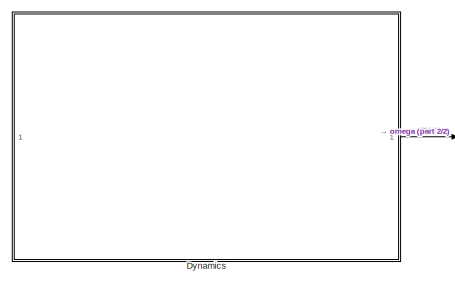
[diagram: root canvas - part 1/2, top left region]
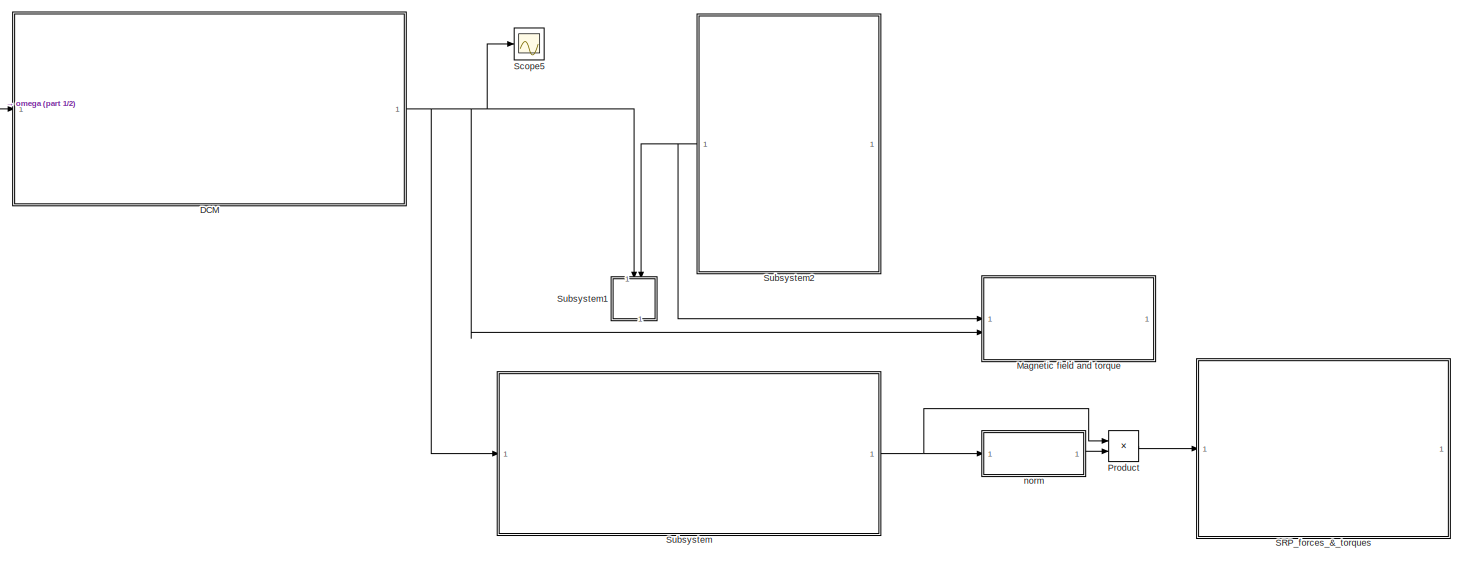
[diagram: root canvas - part 2/2, most of the canvas]
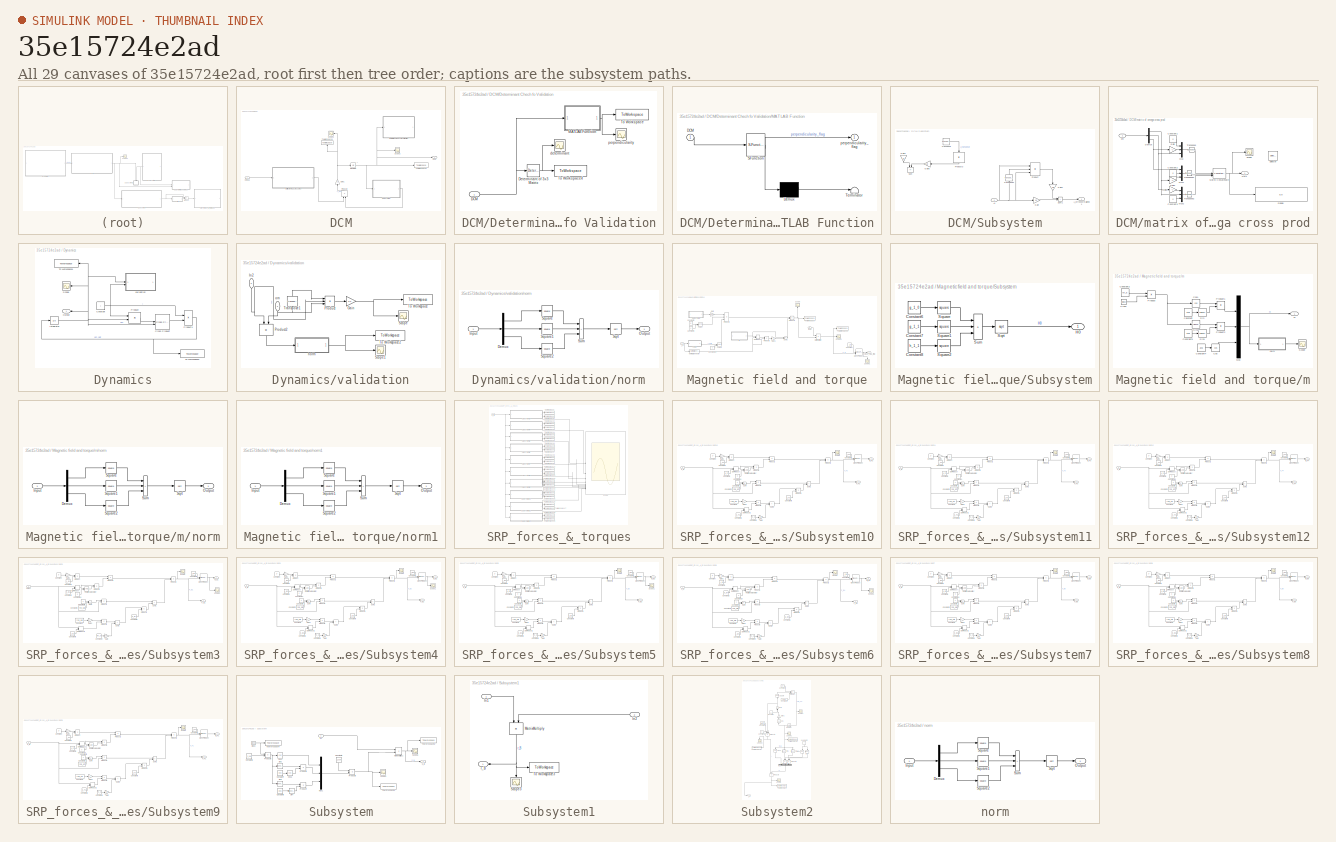
[diagram: thumbnail index - all 29 canvases of the model, root first then tree order]
MODEL slx_35e15724e2ad
KIND model
CONFIG AbsTol = auto
CONFIG EnableMultiTasking = off
CONFIG FixedStep = 0.1
CONFIG MaxStep = auto
CONFIG MinStep = auto
CONFIG RelTol = 1e-3
CONFIG SampleTimeConstraint = Unconstrained
CONFIG SolverName = ode4
CONFIG StartTime = 0.0
CONFIG StopTime = 10000
BLOCK [SubSystem] DCM
BLOCK [Outport] DCM/DCM
BLOCK [SubSystem] DCM/Determinant Chech fo Validation
BLOCK [Inport] DCM/Determinant Chech fo Validation/DCM
BLOCK [Reference] DCM/Determinant Chech fo Validation/Determinant of 3x3 Matrix  REF=sharedutil/Determinant of
3x3 Matrix
  LibrarySourceBlock = aerolibutil/Determinant of\n3x3 Matrix
  SourceBlock = sharedutil/Determinant of\n3x3 Matrix
  SourceType = Determinant of 3x3 Matrix
BLOCK [SubSystem] DCM/Determinant Chech fo Validation/MATLAB Function
  ErrorFcn = Stateflow.Translate.translate
  LibrarySourceBlock = simulink/User-Defined\nFunctions/MATLAB Function
  PermitHierarchicalResolution = ExplicitOnly
  SFBlockType = MATLAB Function
  TreatAsAtomicUnit = on
BLOCK [Demux] DCM/Determinant Chech fo Validation/MATLAB Function/ Demux 
  Outputs = 1
BLOCK [S-Function] DCM/Determinant Chech fo Validation/MATLAB Function/ SFunction 
  EnableBusSupport = on
  FunctionName = sf_sfun
  PortCounts = [1 2]
  SFcnIsStateOwnerBlock = off
  SFunctionDeploymentMode = off
  Tag = Stateflow S-Function 2
BLOCK [Terminator] DCM/Determinant Chech fo Validation/MATLAB Function/ Terminator 
BLOCK [Inport] DCM/Determinant Chech fo Validation/MATLAB Function/DCM
BLOCK [Outport] DCM/Determinant Chech fo Validation/MATLAB Function/perpendicularity_flag
BLOCK [ToWorkspace] DCM/Determinant Chech fo Validation/To Workspace
  FixptAsFi = on
  MaxDataPoints = inf
  SampleTime = -1
  VariableName = perpendicularity_flag
BLOCK [ToWorkspace] DCM/Determinant Chech fo Validation/To Workspace4
  FixptAsFi = on
  MaxDataPoints = inf
  SampleTime = -1
  VariableName = detA
BLOCK [Scope] DCM/Determinant Chech fo Validation/determinant
  Floating = off
  NumInputPorts = 1
  ScopeSpecificationString = Simulink.scopes.TimeScopeBlockCfg('CurrentConfiguration', extmgr.ConfigurationSet(extmgr.Configuration('Core','General UI',true),extmgr.Configuration('Core','Source UI',true),extmgr.Configuration('Sources','WiredSimulink',true,'DataLoggingVariableName','ScopeData1'),extmgr.Configuration('Visuals','Time Domain',true,'SerializedDisplays',{struct('MinYLimReal','0.999999999999972','MaxYLimReal','1.000...<+1497ch>
BLOCK [Scope] DCM/Determinant Chech fo Validation/perpendicularity
  Floating = off
  NumInputPorts = 1
  ScopeSpecificationString = Simulink.scopes.TimeScopeBlockCfg('CurrentConfiguration', extmgr.ConfigurationSet(extmgr.Configuration('Core','General UI',true),extmgr.Configuration('Core','Source UI',true),extmgr.Configuration('Sources','WiredSimulink',true,'DataLoggingVariableName','ScopeData2'),extmgr.Configuration('Visuals','Time Domain',true,'SerializedDisplays',{struct('MinYLimReal','-1.00000','MaxYLimReal','1.00000','YLab...<+1414ch>
BLOCK [Gain] DCM/Gain1
  Gain = -1
  NameLocation = right
BLOCK [Integrator] DCM/Integrator1
  InitialCondition = A0
BLOCK [Product] DCM/Product2
  Multiplication = Matrix(*)
  NameLocation = right
BLOCK [Scope] DCM/Scope1
  Floating = off
  NameLocation = top
  NumInputPorts = 1
  ScopeSpecificationString = Simulink.scopes.TimeScopeBlockCfg('CurrentConfiguration', extmgr.ConfigurationSet(extmgr.Configuration('Core','General UI',true),extmgr.Configuration('Core','Source UI',true),extmgr.Configuration('Sources','WiredSimulink',true,'DataLoggingVariableName','ScopeData3'),extmgr.Configuration('Visuals','Time Domain',true,'SerializedDisplays',{struct('MinYLimReal','-1.12078','MaxYLimReal','1.12831','YLab...<+1504ch>
BLOCK [Scope] DCM/Scope2
  Floating = off
  NumInputPorts = 1
  ScopeSpecificationString = Simulink.scopes.TimeScopeBlockCfg('CurrentConfiguration', extmgr.ConfigurationSet(extmgr.Configuration('Core','General UI',true),extmgr.Configuration('Core','Source UI',true),extmgr.Configuration('Sources','WiredSimulink',true,'DataLoggingVariableName','ScopeData4'),extmgr.Configuration('Visuals','Time Domain',true,'SerializedDisplays',{struct('MinYLimReal','-1.25','MaxYLimReal','1.25','YLabelReal...<+1380ch>
BLOCK [SubSystem] DCM/Subsystem
BLOCK [Inport] DCM/Subsystem/A1
BLOCK [Outport] DCM/Subsystem/A_orthonormalized1
BLOCK [Gain] DCM/Subsystem/Gain
  Gain = 1.5
BLOCK [Gain] DCM/Subsystem/Gain1
  Gain = -0.5
  NameLocation = left
BLOCK [Gain] DCM/Subsystem/Gain4
  Commented = on
  Gain = 3/2
  NameLocation = left
BLOCK [Gain] DCM/Subsystem/Gain5
  Commented = on
  Gain = 1/2
  NameLocation = top
BLOCK [Product] DCM/Subsystem/Product
  Inputs = 3
  Multiplication = Matrix(*)
BLOCK [Product] DCM/Subsystem/Product3
  Commented = on
  Inputs = 3
  Multiplication = Matrix(*)
  NameLocation = left
BLOCK [Sum] DCM/Subsystem/Sum
  Commented = on
  IconShape = rectangular
  Inputs = +-
  NameLocation = left
BLOCK [Sum] DCM/Subsystem/Sum1
  IconShape = rectangular
BLOCK [Math] DCM/Subsystem/Transpose
  Commented = on
  Operator = transpose
BLOCK [Math] DCM/Subsystem/Transpose1
  NameLocation = right
  Operator = transpose
BLOCK [ToWorkspace] DCM/To Workspace2
  FixptAsFi = on
  MaxDataPoints = inf
  SampleTime = -1
  VariableName = A
BLOCK [ToWorkspace] DCM/To Workspace3
  FixptAsFi = on
  MaxDataPoints = inf
  NameLocation = right
  SampleTime = -1
  VariableName = A_dot
BLOCK [SubSystem] DCM/matrix of omega cross prod
BLOCK [Constant] DCM/matrix of omega cross prod/Constant1
  Value = 0
BLOCK [Constant] DCM/matrix of omega cross prod/Constant2
  Value = 0
BLOCK [Constant] DCM/matrix of omega cross prod/Constant3
  Value = 0
BLOCK [Demux] DCM/matrix of omega cross prod/Demux
  Outputs = 3
BLOCK [Display] DCM/matrix of omega cross prod/Display
  Decimation = 1
BLOCK [Gain] DCM/matrix of omega cross prod/Gain
  Gain = -1
BLOCK [Gain] DCM/matrix of omega cross prod/Gain1
  Gain = -1
BLOCK [Gain] DCM/matrix of omega cross prod/Gain2
  Gain = -1
BLOCK [Concatenate] DCM/matrix of omega cross prod/Matrix Concatenate
  Mode = Multidimensional array
  NumInputs = 3
BLOCK [Mux] DCM/matrix of omega cross prod/Mux
  DisplayOption = bar
  Inputs = 3
BLOCK [Mux] DCM/matrix of omega cross prod/Mux1
  DisplayOption = bar
  Inputs = 3
BLOCK [Mux] DCM/matrix of omega cross prod/Mux2
  DisplayOption = bar
  Inputs = 3
BLOCK [Outport] DCM/matrix of omega cross prod/Out1
BLOCK [Scope] DCM/matrix of omega cross prod/Scope
  Floating = off
  NumInputPorts = 1
  ScopeSpecificationString = Simulink.scopes.TimeScopeBlockCfg('CurrentConfiguration', extmgr.ConfigurationSet(extmgr.Configuration('Core','General UI',true),extmgr.Configuration('Core','Source UI',true),extmgr.Configuration('Sources','WiredSimulink',true,'DataLoggingVariableName','ScopeData2'),extmgr.Configuration('Visuals','Time Domain',true,'SerializedDisplays',{struct('MinYLimReal','-1.01319','MaxYLimReal','1.01319','YLab...<+1486ch>
BLOCK [Selector] DCM/matrix of omega cross prod/Selector
  IndexOptions = Index vector (dialog)
  Indices = [1 3]
  InputPortWidth = 3
  OutputSizes = 1
BLOCK [Math] DCM/matrix of omega cross prod/Transpose
  Operator = transpose
BLOCK [Math] DCM/matrix of omega cross prod/Transpose1
  Operator = transpose
BLOCK [Math] DCM/matrix of omega cross prod/Transpose2
  Operator = transpose
BLOCK [Inport] DCM/matrix of omega cross prod/om
BLOCK [Inport] DCM/omega
BLOCK [SubSystem] Dynamics
BLOCK [Constant] Dynamics/Constant
  Value = I
BLOCK [Reference] Dynamics/Cross Product  REF=matrix_library/Cross Product
  LibrarySourceBlock = simulink/Matrix\nOperations/Cross Product
  SourceBlock = matrix_library/Cross Product
  SourceType = CrossProduct
BLOCK [Integrator] Dynamics/Integrator
  InitialCondition = om_0
BLOCK [Outport] Dynamics/Output
  NameLocation = top
BLOCK [Product] Dynamics/Product
  Multiplication = Matrix(*)
BLOCK [Product] Dynamics/Product1
  Inputs = /*
  Multiplication = Matrix(*)
BLOCK [Scope] Dynamics/Scope
  Floating = off
  NameLocation = top
  NumInputPorts = 1
  ScopeSpecificationString = Simulink.scopes.TimeScopeBlockCfg('CurrentConfiguration', extmgr.ConfigurationSet(extmgr.Configuration('Core','General UI',true),extmgr.Configuration('Core','Source UI',true),extmgr.Configuration('Sources','WiredSimulink',true,'DataLoggingVariableName','ScopeData1'),extmgr.Configuration('Visuals','Time Domain',true,'SerializedDisplays',{struct('MinYLimReal','-1.01319','MaxYLimReal','1.01319','YLab...<+1377ch>
BLOCK [ToWorkspace] Dynamics/To Workspace1
  FixptAsFi = on
  MaxDataPoints = inf
  NameLocation = top
  SampleTime = -1
  VariableName = omega
BLOCK [ToWorkspace] Dynamics/To Workspace2
  FixptAsFi = on
  MaxDataPoints = inf
  SampleTime = -1
  VariableName = omega_dot
BLOCK [SubSystem] Dynamics/validation
BLOCK [Gain] Dynamics/validation/Gain
  Gain = 1/2
BLOCK [Inport] Dynamics/validation/In2
  NameLocation = left
  Port = 2
BLOCK [Product] Dynamics/validation/Product
  Inputs = 3
  Multiplication = Matrix(*)
BLOCK [Product] Dynamics/validation/Product2
  Multiplication = Matrix(*)
  NameLocation = left
BLOCK [Scope] Dynamics/validation/Scope
  Floating = off
  NumInputPorts = 1
  ScopeSpecificationString = Simulink.scopes.TimeScopeBlockCfg('CurrentConfiguration', extmgr.ConfigurationSet(extmgr.Configuration('Core','General UI',true),extmgr.Configuration('Core','Source UI',true),extmgr.Configuration('Sources','WiredSimulink',true,'DataLoggingVariableName','ScopeData2'),extmgr.Configuration('Visuals','Time Domain',true,'SerializedDisplays',{struct('MinYLimReal','0.01830474937','MaxYLimReal','0.0183047...<+1409ch>
BLOCK [Scope] Dynamics/validation/Scope1
  Floating = off
  NumInputPorts = 1
  ScopeSpecificationString = Simulink.scopes.TimeScopeBlockCfg('CurrentConfiguration', extmgr.ConfigurationSet(extmgr.Configuration('Core','General UI',true),extmgr.Configuration('Core','Source UI',true),extmgr.Configuration('Sources','WiredSimulink',true,'DataLoggingVariableName','ScopeData1'),extmgr.Configuration('Visuals','Time Domain',true,'SerializedDisplays',{struct('MinYLimReal','0.0447132243','MaxYLimReal','0.04471322...<+1406ch>
BLOCK [ToWorkspace] Dynamics/validation/To Workspace
  FixptAsFi = on
  MaxDataPoints = inf
  SampleTime = -1
  VariableName = E
BLOCK [ToWorkspace] Dynamics/validation/To Workspace2
  FixptAsFi = on
  MaxDataPoints = inf
  SampleTime = -1
  VariableName = hnorm
BLOCK [Math] Dynamics/validation/Transpose1
  NameLocation = right
  Operator = transpose
BLOCK [SubSystem] Dynamics/validation/norm
BLOCK [Demux] Dynamics/validation/norm/Demux
  Outputs = 3
BLOCK [Inport] Dynamics/validation/norm/Input
BLOCK [Outport] Dynamics/validation/norm/Output
BLOCK [Sqrt] Dynamics/validation/norm/Sqrt
BLOCK [Math] Dynamics/validation/norm/Square
  Operator = square
BLOCK [Math] Dynamics/validation/norm/Square1
  Operator = square
BLOCK [Math] Dynamics/validation/norm/Square2
  Operator = square
BLOCK [Sum] Dynamics/validation/norm/Sum
  IconShape = rectangular
  Inputs = +++
BLOCK [Inport] Dynamics/validation/om
  NameLocation = left
BLOCK [SubSystem] Magnetic field and torque
BLOCK [Constant] Magnetic field and torque/Constant
  Value = j_B
BLOCK [Constant] Magnetic field and torque/Constant10
  Value = 3
BLOCK [Constant] Magnetic field and torque/Constant5
  Value = R
BLOCK [Constant] Magnetic field and torque/Constant9
  Value = 3
BLOCK [Reference] Magnetic field and torque/Cross Product  REF=matrix_library/Cross Product
  LibrarySourceBlock = simulink/Matrix\nOperations/Cross Product
  SourceBlock = matrix_library/Cross Product
  SourceType = CrossProduct
BLOCK [Inport] Magnetic field and torque/DCM
  Port = 2
BLOCK [DotProduct] Magnetic field and torque/Dot Product
  OutDataTypeStr = Inherit: Inherit via internal rule
BLOCK [Gain] Magnetic field and torque/Gain
  Gain = 1e-9
BLOCK [Gain] Magnetic field and torque/Gain1
  Gain = 3
BLOCK [Product] Magnetic field and torque/MatrixMultiply
  Multiplication = Matrix(*)
BLOCK [Reference] Magnetic field and torque/Normalize Vector  REF=vrlib/Utilities/Normalize Vector
  SourceBlock = vrlib/Utilities/Normalize Vector
  SourceType = Normalize Vector
BLOCK [Math] Magnetic field and torque/Power
  Operator = pow
BLOCK [Math] Magnetic field and torque/Power1
  Operator = pow
BLOCK [Product] Magnetic field and torque/Product3
  Inputs = **/
BLOCK [Product] Magnetic field and torque/Product4
BLOCK [Product] Magnetic field and torque/Product5
BLOCK [Scope] Magnetic field and torque/Scope
  Floating = off
  NameLocation = right
  NumInputPorts = 1
  ScopeSpecificationString = Simulink.scopes.TimeScopeBlockCfg('CurrentConfiguration', extmgr.ConfigurationSet(extmgr.Configuration('Core','General UI',true),extmgr.Configuration('Core','Source UI',true),extmgr.Configuration('Sources','WiredSimulink',true,'DataLoggingVariableName','ScopeData3'),extmgr.Configuration('Visuals','Time Domain',true,'SerializedDisplays',{struct('MinYLimReal','-0.000055','MaxYLimReal','0.00003','YLa...<+1401ch>
BLOCK [Scope] Magnetic field and torque/Scope1
  Floating = off
  NameLocation = left
  NumInputPorts = 1
  ScopeSpecificationString = Simulink.scopes.TimeScopeBlockCfg('CurrentConfiguration', extmgr.ConfigurationSet(extmgr.Configuration('Core','General UI',true),extmgr.Configuration('Core','Source UI',true),extmgr.Configuration('Sources','WiredSimulink',true,'DataLoggingVariableName','ScopeData5'),extmgr.Configuration('Visuals','Time Domain',true,'SerializedDisplays',{struct('MinYLimReal','-0.0000027','MaxYLimReal','0.0000012','...<+1784ch>
BLOCK [Scope] Magnetic field and torque/Scope3
  Floating = off
  NumInputPorts = 1
  ScopeSpecificationString = Simulink.scopes.TimeScopeBlockCfg('CurrentConfiguration', extmgr.ConfigurationSet(extmgr.Configuration('Core','General UI',true),extmgr.Configuration('Core','Source UI',true),extmgr.Configuration('Sources','WiredSimulink',true,'DataLoggingVariableName','ScopeData4'),extmgr.Configuration('Visuals','Time Domain',true,'SerializedDisplays',{struct('MinYLimReal','-0.000055','MaxYLimReal','0.000033','YL...<+1388ch>
BLOCK [SubSystem] Magnetic field and torque/Subsystem
BLOCK [Constant] Magnetic field and torque/Subsystem/Constant6
  Value = g_1_0
BLOCK [Constant] Magnetic field and torque/Subsystem/Constant7
  Value = g_1_1
BLOCK [Constant] Magnetic field and torque/Subsystem/Constant8
  Value = h_1_1
BLOCK [Outport] Magnetic field and torque/Subsystem/H0
BLOCK [Sqrt] Magnetic field and torque/Subsystem/Sqrt
BLOCK [Math] Magnetic field and torque/Subsystem/Square
  Operator = square
BLOCK [Math] Magnetic field and torque/Subsystem/Square1
  Operator = square
BLOCK [Math] Magnetic field and torque/Subsystem/Square2
  Operator = square
BLOCK [Sum] Magnetic field and torque/Subsystem/Sum
  IconShape = rectangular
  Inputs = +++
BLOCK [Sum] Magnetic field and torque/Sum1
  IconShape = rectangular
  Inputs = -+
BLOCK [ToWorkspace] Magnetic field and torque/To Workspace
  FixptAsFi = on
  MaxDataPoints = inf
  SampleTime = -1
  VariableName = b_N
BLOCK [ToWorkspace] Magnetic field and torque/To Workspace3
  FixptAsFi = on
  MaxDataPoints = inf
  SampleTime = -1
  VariableName = Torque_mag_field
BLOCK [Outport] Magnetic field and torque/Torque_mag_field
BLOCK [SubSystem] Magnetic field and torque/m
BLOCK [Clock] Magnetic field and torque/m/Clock
BLOCK [Constant] Magnetic field and torque/m/Constant
  Value = ang
BLOCK [Constant] Magnetic field and torque/m/Constant2
  Value = rot_E
BLOCK [Constant] Magnetic field and torque/m/Constant3
  Value = ang
BLOCK [Constant] Magnetic field and torque/m/Constant4
  Value = ang
BLOCK [Trigonometry] Magnetic field and torque/m/Cos
  Operator = cos
BLOCK [Trigonometry] Magnetic field and torque/m/Cos1
  Operator = cos
BLOCK [Mux] Magnetic field and torque/m/Mux
  DisplayOption = bar
  Inputs = 3
BLOCK [Product] Magnetic field and torque/m/Product
BLOCK [Product] Magnetic field and torque/m/Product1
BLOCK [Product] Magnetic field and torque/m/Product2
BLOCK [Scope] Magnetic field and torque/m/Scope
  Floating = off
  NumInputPorts = 1
  ScopeSpecificationString = Simulink.scopes.TimeScopeBlockCfg('CurrentConfiguration', extmgr.ConfigurationSet(extmgr.Configuration('Core','General UI',true),extmgr.Configuration('Core','Source UI',true),extmgr.Configuration('Sources','WiredSimulink',true,'DataLoggingVariableName','ScopeData2'),extmgr.Configuration('Visuals','Time Domain',true,'SerializedDisplays',{struct('MinYLimReal','0.9','MaxYLimReal','1.1','YLabelReal','...<+1371ch>
BLOCK [Trigonometry] Magnetic field and torque/m/Sin
BLOCK [Trigonometry] Magnetic field and torque/m/Sin1
BLOCK [Trigonometry] Magnetic field and torque/m/Sin2
BLOCK [Outport] Magnetic field and torque/m/m
BLOCK [SubSystem] Magnetic field and torque/m/norm
BLOCK [Demux] Magnetic field and torque/m/norm/Demux
  Outputs = 3
BLOCK [Inport] Magnetic field and torque/m/norm/Input
BLOCK [Outport] Magnetic field and torque/m/norm/Output
BLOCK [Sqrt] Magnetic field and torque/m/norm/Sqrt
BLOCK [Math] Magnetic field and torque/m/norm/Square
  Operator = square
BLOCK [Math] Magnetic field and torque/m/norm/Square1
  Operator = square
BLOCK [Math] Magnetic field and torque/m/norm/Square2
  Operator = square
BLOCK [Sum] Magnetic field and torque/m/norm/Sum
  IconShape = rectangular
  Inputs = +++
BLOCK [SubSystem] Magnetic field and torque/norm1
BLOCK [Demux] Magnetic field and torque/norm1/Demux
  Outputs = 3
BLOCK [Inport] Magnetic field and torque/norm1/Input
BLOCK [Outport] Magnetic field and torque/norm1/Output
BLOCK [Sqrt] Magnetic field and torque/norm1/Sqrt
BLOCK [Math] Magnetic field and torque/norm1/Square
  Operator = square
BLOCK [Math] Magnetic field and torque/norm1/Square1
  Operator = square
BLOCK [Math] Magnetic field and torque/norm1/Square2
  Operator = square
BLOCK [Sum] Magnetic field and torque/norm1/Sum
  IconShape = rectangular
  Inputs = +++
BLOCK [Inport] Magnetic field and torque/r_N
BLOCK [Product] Product
  Inputs = */
BLOCK [SubSystem] SRP_forces_&_torques
BLOCK [Inport] SRP_forces_&_torques/S_B
BLOCK [Scope] SRP_forces_&_torques/Scope
  Floating = off
  NumInputPorts = 10
  ScopeSpecificationString = Simulink.scopes.TimeScopeBlockCfg('CurrentConfiguration', extmgr.ConfigurationSet(extmgr.Configuration('Core','General UI',true),extmgr.Configuration('Core','Source UI',true),extmgr.Configuration('Sources','WiredSimulink',true,'DataLoggingVariableName','ScopeData1'),extmgr.Configuration('Visuals','Time Domain',true,'SerializedDisplays',{struct('MinYLimReal','-0.0000008','MaxYLimReal','0.0000008','...<+2822ch>
BLOCK [SubSystem] SRP_forces_&_torques/Subsystem10
BLOCK [Constant] SRP_forces_&_torques/Subsystem10/Constant
  Value = P
BLOCK [Constant] SRP_forces_&_torques/Subsystem10/Constant1
  Value = A_P2
BLOCK [Constant] SRP_forces_&_torques/Subsystem10/Constant10
  Value = 0
BLOCK [Constant] SRP_forces_&_torques/Subsystem10/Constant2
  Value = N_P2
BLOCK [Constant] SRP_forces_&_torques/Subsystem10/Constant3
  Value = rho_sP
BLOCK [Constant] SRP_forces_&_torques/Subsystem10/Constant4
  Value = rho_d
BLOCK [Constant] SRP_forces_&_torques/Subsystem10/Constant5
BLOCK [Constant] SRP_forces_&_torques/Subsystem10/Constant6
  Value = N_P2
BLOCK [Constant] SRP_forces_&_torques/Subsystem10/Constant7
  Value = rho_sP
BLOCK [Constant] SRP_forces_&_torques/Subsystem10/Constant8
  Value = N_P2
BLOCK [Constant] SRP_forces_&_torques/Subsystem10/Constant9
  Value = r_P2
BLOCK [Reference] SRP_forces_&_torques/Subsystem10/Cross Product  REF=matrix_library/Cross Product
  LibrarySourceBlock = simulink/Matrix\nOperations/Cross Product
  SourceBlock = matrix_library/Cross Product
  SourceType = CrossProduct
BLOCK [DotProduct] SRP_forces_&_torques/Subsystem10/Dot Product
  OutDataTypeStr = Inherit: Inherit via internal rule
BLOCK [DotProduct] SRP_forces_&_torques/Subsystem10/Dot Product1
  OutDataTypeStr = Inherit: Inherit via internal rule
BLOCK [Outport] SRP_forces_&_torques/Subsystem10/F_P2
  Port = 2
BLOCK [Gain] SRP_forces_&_torques/Subsystem10/Gain
  Gain = 2/3
BLOCK [Gain] SRP_forces_&_torques/Subsystem10/Gain1
  Gain = -1
BLOCK [Gain] SRP_forces_&_torques/Subsystem10/Gain2
  Gain = 2
BLOCK [Outport] SRP_forces_&_torques/Subsystem10/M_P2
BLOCK [Product] SRP_forces_&_torques/Subsystem10/Product
BLOCK [Product] SRP_forces_&_torques/Subsystem10/Product1
BLOCK [Product] SRP_forces_&_torques/Subsystem10/Product2
BLOCK [Product] SRP_forces_&_torques/Subsystem10/Product3
BLOCK [Product] SRP_forces_&_torques/Subsystem10/Product4
BLOCK [Product] SRP_forces_&_torques/Subsystem10/Product5
BLOCK [Product] SRP_forces_&_torques/Subsystem10/Product6
BLOCK [RelationalOperator] SRP_forces_&_torques/Subsystem10/Relational Operator
  InputSameDT = off
  OutDataTypeStr = boolean
  RndMeth = Simplest
BLOCK [Inport] SRP_forces_&_torques/Subsystem10/S_B
BLOCK [Scope] SRP_forces_&_torques/Subsystem10/Scope
  Floating = off
  NumInputPorts = 1
  ScopeSpecificationString = Simulink.scopes.TimeScopeBlockCfg('CurrentConfiguration', extmgr.ConfigurationSet(extmgr.Configuration('Core','General UI',true),extmgr.Configuration('Core','Source UI',true),extmgr.Configuration('Sources','WiredSimulink',true,'DataLoggingVariableName','ScopeData7'),extmgr.Configuration('Visuals','Time Domain',true,'SerializedDisplays',{struct('MinYLimReal','-10454273279847300.00000','MaxYLimReal'...<+1629ch>  <repeated x7 — deduplicated; at blocks: Scope>
BLOCK [Sum] SRP_forces_&_torques/Subsystem10/Sum
  IconShape = rectangular
  Inputs = +-
BLOCK [Sum] SRP_forces_&_torques/Subsystem10/Sum1
  IconShape = rectangular
BLOCK [Sum] SRP_forces_&_torques/Subsystem10/Sum2
  IconShape = rectangular
BLOCK [SubSystem] SRP_forces_&_torques/Subsystem11
BLOCK [Constant] SRP_forces_&_torques/Subsystem11/Constant
  Value = P
BLOCK [Constant] SRP_forces_&_torques/Subsystem11/Constant1
  Value = A_P3
BLOCK [Constant] SRP_forces_&_torques/Subsystem11/Constant10
  Value = 0
BLOCK [Constant] SRP_forces_&_torques/Subsystem11/Constant2
  Value = N_P3
BLOCK [Constant] SRP_forces_&_torques/Subsystem11/Constant3
  Value = rho_sP
BLOCK [Constant] SRP_forces_&_torques/Subsystem11/Constant4
  Value = rho_d
BLOCK [Constant] SRP_forces_&_torques/Subsystem11/Constant5
BLOCK [Constant] SRP_forces_&_torques/Subsystem11/Constant6
  Value = N_P3
BLOCK [Constant] SRP_forces_&_torques/Subsystem11/Constant7
  Value = rho_sP
BLOCK [Constant] SRP_forces_&_torques/Subsystem11/Constant8
  Value = N_P3
BLOCK [Constant] SRP_forces_&_torques/Subsystem11/Constant9
  Value = r_P3
BLOCK [Reference] SRP_forces_&_torques/Subsystem11/Cross Product  REF=matrix_library/Cross Product
  LibrarySourceBlock = simulink/Matrix\nOperations/Cross Product
  SourceBlock = matrix_library/Cross Product
  SourceType = CrossProduct
BLOCK [DotProduct] SRP_forces_&_torques/Subsystem11/Dot Product
  OutDataTypeStr = Inherit: Inherit via internal rule
BLOCK [DotProduct] SRP_forces_&_torques/Subsystem11/Dot Product1
  OutDataTypeStr = Inherit: Inherit via internal rule
BLOCK [Outport] SRP_forces_&_torques/Subsystem11/F_P3
  Port = 2
BLOCK [Gain] SRP_forces_&_torques/Subsystem11/Gain
  Gain = 2/3
BLOCK [Gain] SRP_forces_&_torques/Subsystem11/Gain1
  Gain = -1
BLOCK [Gain] SRP_forces_&_torques/Subsystem11/Gain2
  Gain = 2
BLOCK [Outport] SRP_forces_&_torques/Subsystem11/M_P3
BLOCK [Product] SRP_forces_&_torques/Subsystem11/Product
BLOCK [Product] SRP_forces_&_torques/Subsystem11/Product1
BLOCK [Product] SRP_forces_&_torques/Subsystem11/Product2
BLOCK [Product] SRP_forces_&_torques/Subsystem11/Product3
BLOCK [Product] SRP_forces_&_torques/Subsystem11/Product4
BLOCK [Product] SRP_forces_&_torques/Subsystem11/Product5
BLOCK [Product] SRP_forces_&_torques/Subsystem11/Product6
BLOCK [RelationalOperator] SRP_forces_&_torques/Subsystem11/Relational Operator
  InputSameDT = off
  OutDataTypeStr = boolean
  RndMeth = Simplest
BLOCK [Inport] SRP_forces_&_torques/Subsystem11/S_B
BLOCK [Scope] SRP_forces_&_torques/Subsystem11/Scope
  Floating = off
  NumInputPorts = 1
BLOCK [Sum] SRP_forces_&_torques/Subsystem11/Sum
  IconShape = rectangular
  Inputs = +-
BLOCK [Sum] SRP_forces_&_torques/Subsystem11/Sum1
  IconShape = rectangular
BLOCK [Sum] SRP_forces_&_torques/Subsystem11/Sum2
  IconShape = rectangular
BLOCK [SubSystem] SRP_forces_&_torques/Subsystem12
BLOCK [Constant] SRP_forces_&_torques/Subsystem12/Constant
  Value = P
BLOCK [Constant] SRP_forces_&_torques/Subsystem12/Constant1
  Value = A_P4
BLOCK [Constant] SRP_forces_&_torques/Subsystem12/Constant10
  Value = 0
BLOCK [Constant] SRP_forces_&_torques/Subsystem12/Constant2
  Value = N_P4
BLOCK [Constant] SRP_forces_&_torques/Subsystem12/Constant3
  Value = rho_sP
BLOCK [Constant] SRP_forces_&_torques/Subsystem12/Constant4
  Value = rho_d
BLOCK [Constant] SRP_forces_&_torques/Subsystem12/Constant5
BLOCK [Constant] SRP_forces_&_torques/Subsystem12/Constant6
  Value = N_P4
BLOCK [Constant] SRP_forces_&_torques/Subsystem12/Constant7
  Value = rho_sP
BLOCK [Constant] SRP_forces_&_torques/Subsystem12/Constant8
  Value = N_P4
BLOCK [Constant] SRP_forces_&_torques/Subsystem12/Constant9
  Value = r_P4
BLOCK [Reference] SRP_forces_&_torques/Subsystem12/Cross Product  REF=matrix_library/Cross Product
  LibrarySourceBlock = simulink/Matrix\nOperations/Cross Product
  SourceBlock = matrix_library/Cross Product
  SourceType = CrossProduct
BLOCK [DotProduct] SRP_forces_&_torques/Subsystem12/Dot Product
  OutDataTypeStr = Inherit: Inherit via internal rule
BLOCK [DotProduct] SRP_forces_&_torques/Subsystem12/Dot Product1
  OutDataTypeStr = Inherit: Inherit via internal rule
BLOCK [Outport] SRP_forces_&_torques/Subsystem12/F_P4
  Port = 2
BLOCK [Gain] SRP_forces_&_torques/Subsystem12/Gain
  Gain = 2/3
BLOCK [Gain] SRP_forces_&_torques/Subsystem12/Gain1
  Gain = -1
BLOCK [Gain] SRP_forces_&_torques/Subsystem12/Gain2
  Gain = 2
BLOCK [Outport] SRP_forces_&_torques/Subsystem12/M_P4
BLOCK [Product] SRP_forces_&_torques/Subsystem12/Product
BLOCK [Product] SRP_forces_&_torques/Subsystem12/Product1
BLOCK [Product] SRP_forces_&_torques/Subsystem12/Product2
BLOCK [Product] SRP_forces_&_torques/Subsystem12/Product3
BLOCK [Product] SRP_forces_&_torques/Subsystem12/Product4
BLOCK [Product] SRP_forces_&_torques/Subsystem12/Product5
BLOCK [Product] SRP_forces_&_torques/Subsystem12/Product6
BLOCK [RelationalOperator] SRP_forces_&_torques/Subsystem12/Relational Operator
  InputSameDT = off
  OutDataTypeStr = boolean
  RndMeth = Simplest
BLOCK [Inport] SRP_forces_&_torques/Subsystem12/S_B
BLOCK [Scope] SRP_forces_&_torques/Subsystem12/Scope
  Floating = off
  NumInputPorts = 1
BLOCK [Sum] SRP_forces_&_torques/Subsystem12/Sum
  IconShape = rectangular
  Inputs = +-
BLOCK [Sum] SRP_forces_&_torques/Subsystem12/Sum1
  IconShape = rectangular
BLOCK [Sum] SRP_forces_&_torques/Subsystem12/Sum2
  IconShape = rectangular
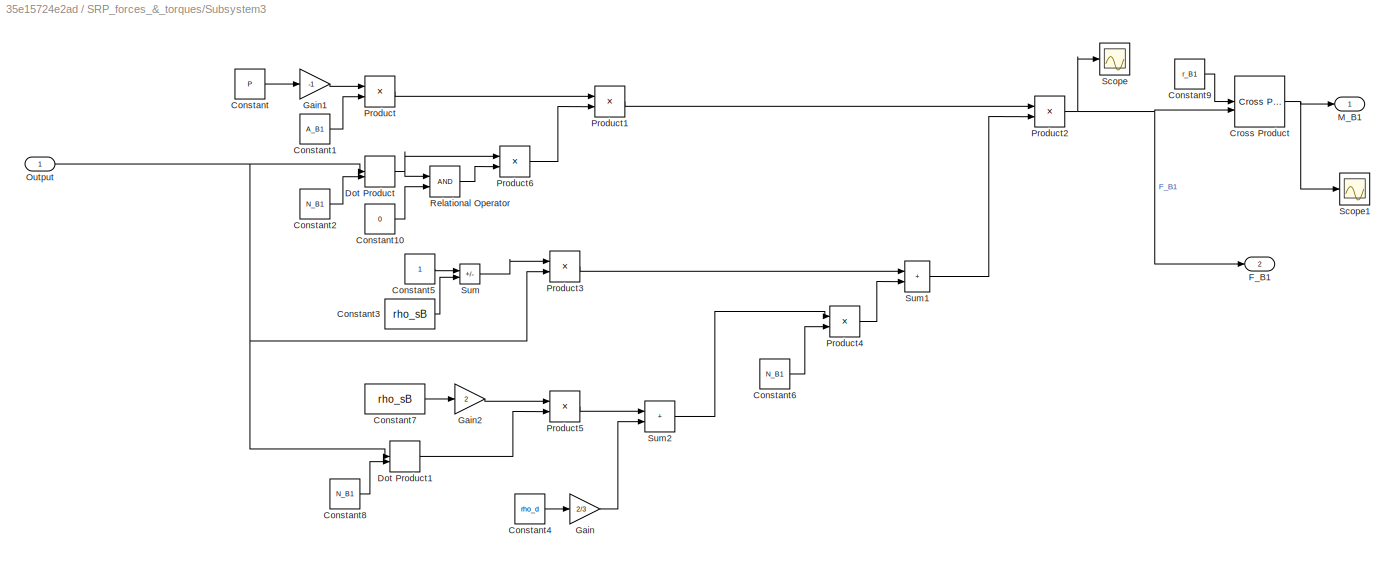
BLOCK [SubSystem] SRP_forces_&_torques/Subsystem3
BLOCK [Constant] SRP_forces_&_torques/Subsystem3/Constant
  Value = P
BLOCK [Constant] SRP_forces_&_torques/Subsystem3/Constant1
  Value = A_B1
BLOCK [Constant] SRP_forces_&_torques/Subsystem3/Constant10
  Value = 0
BLOCK [Constant] SRP_forces_&_torques/Subsystem3/Constant2
  Value = N_B1
BLOCK [Constant] SRP_forces_&_torques/Subsystem3/Constant3
  Value = rho_sB
BLOCK [Constant] SRP_forces_&_torques/Subsystem3/Constant4
  Value = rho_d
BLOCK [Constant] SRP_forces_&_torques/Subsystem3/Constant5
BLOCK [Constant] SRP_forces_&_torques/Subsystem3/Constant6
  Value = N_B1
BLOCK [Constant] SRP_forces_&_torques/Subsystem3/Constant7
  Value = rho_sB
BLOCK [Constant] SRP_forces_&_torques/Subsystem3/Constant8
  Value = N_B1
BLOCK [Constant] SRP_forces_&_torques/Subsystem3/Constant9
  Value = r_B1
BLOCK [Reference] SRP_forces_&_torques/Subsystem3/Cross Product  REF=matrix_library/Cross Product
  LibrarySourceBlock = simulink/Matrix\nOperations/Cross Product
  SourceBlock = matrix_library/Cross Product
  SourceType = CrossProduct
BLOCK [DotProduct] SRP_forces_&_torques/Subsystem3/Dot Product
  OutDataTypeStr = Inherit: Inherit via internal rule
BLOCK [DotProduct] SRP_forces_&_torques/Subsystem3/Dot Product1
  OutDataTypeStr = Inherit: Inherit via internal rule
BLOCK [Outport] SRP_forces_&_torques/Subsystem3/F_B1
  Port = 2
BLOCK [Gain] SRP_forces_&_torques/Subsystem3/Gain
  Gain = 2/3
BLOCK [Gain] SRP_forces_&_torques/Subsystem3/Gain1
  Gain = -1
BLOCK [Gain] SRP_forces_&_torques/Subsystem3/Gain2
  Gain = 2
BLOCK [Outport] SRP_forces_&_torques/Subsystem3/M_B1
BLOCK [Inport] SRP_forces_&_torques/Subsystem3/Output
BLOCK [Product] SRP_forces_&_torques/Subsystem3/Product
BLOCK [Product] SRP_forces_&_torques/Subsystem3/Product1
BLOCK [Product] SRP_forces_&_torques/Subsystem3/Product2
BLOCK [Product] SRP_forces_&_torques/Subsystem3/Product3
BLOCK [Product] SRP_forces_&_torques/Subsystem3/Product4
BLOCK [Product] SRP_forces_&_torques/Subsystem3/Product5
BLOCK [Product] SRP_forces_&_torques/Subsystem3/Product6
BLOCK [RelationalOperator] SRP_forces_&_torques/Subsystem3/Relational Operator
  InputSameDT = off
  OutDataTypeStr = boolean
  RndMeth = Simplest
BLOCK [Scope] SRP_forces_&_torques/Subsystem3/Scope
  Floating = off
  NumInputPorts = 1
  ScopeSpecificationString = Simulink.scopes.TimeScopeBlockCfg('CurrentConfiguration', extmgr.ConfigurationSet(extmgr.Configuration('Core','General UI',true),extmgr.Configuration('Core','Source UI',true),extmgr.Configuration('Sources','WiredSimulink',true,'DataLoggingVariableName','ScopeData7'),extmgr.Configuration('Visuals','Time Domain',true,'SerializedDisplays',{struct('MinYLimReal','-0.00000049','MaxYLimReal','0.00000013'...<+1513ch>
BLOCK [Scope] SRP_forces_&_torques/Subsystem3/Scope1
  Floating = off
  NumInputPorts = 1
  ScopeSpecificationString = Simulink.scopes.TimeScopeBlockCfg('CurrentConfiguration', extmgr.ConfigurationSet(extmgr.Configuration('Core','General UI',true),extmgr.Configuration('Core','Source UI',true),extmgr.Configuration('Sources','WiredSimulink',true,'DataLoggingVariableName','ScopeData8'),extmgr.Configuration('Visuals','Time Domain',true,'SerializedDisplays',{struct('MinYLimReal','-0.000000000046','MaxYLimReal','0.00000...<+1551ch>
BLOCK [Sum] SRP_forces_&_torques/Subsystem3/Sum
  IconShape = rectangular
  Inputs = +-
BLOCK [Sum] SRP_forces_&_torques/Subsystem3/Sum1
  IconShape = rectangular
BLOCK [Sum] SRP_forces_&_torques/Subsystem3/Sum2
  IconShape = rectangular
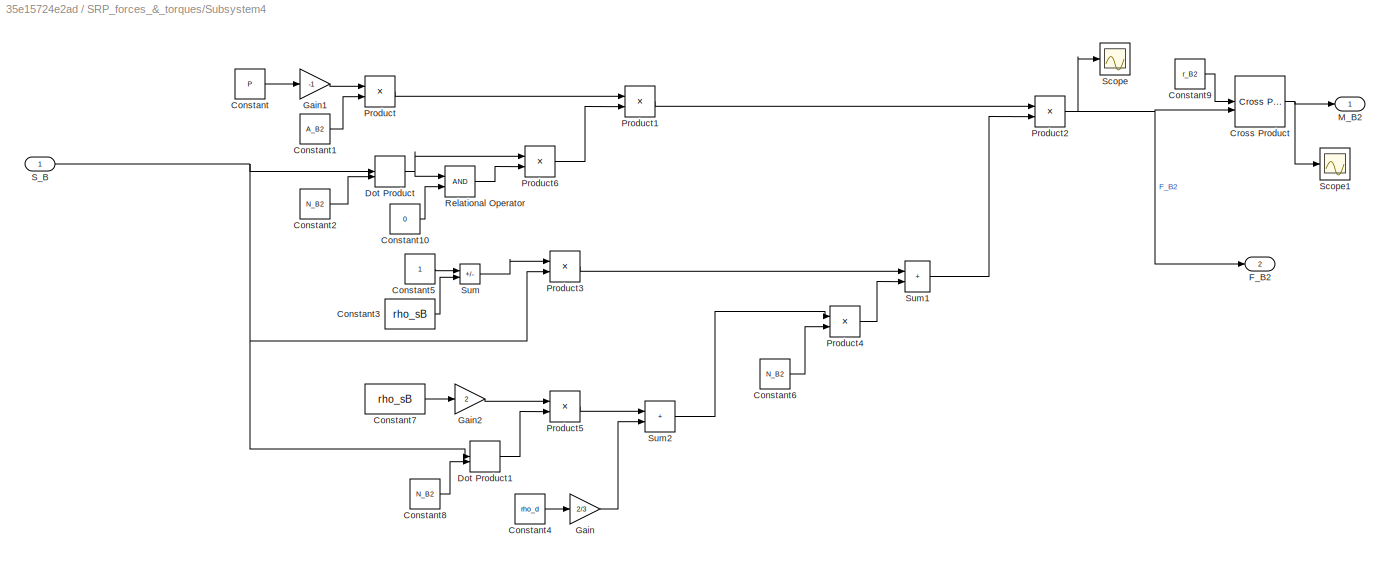
BLOCK [SubSystem] SRP_forces_&_torques/Subsystem4
BLOCK [Constant] SRP_forces_&_torques/Subsystem4/Constant
  Value = P
BLOCK [Constant] SRP_forces_&_torques/Subsystem4/Constant1
  Value = A_B2
BLOCK [Constant] SRP_forces_&_torques/Subsystem4/Constant10
  Value = 0
BLOCK [Constant] SRP_forces_&_torques/Subsystem4/Constant2
  Value = N_B2
BLOCK [Constant] SRP_forces_&_torques/Subsystem4/Constant3
  Value = rho_sB
BLOCK [Constant] SRP_forces_&_torques/Subsystem4/Constant4
  Value = rho_d
BLOCK [Constant] SRP_forces_&_torques/Subsystem4/Constant5
BLOCK [Constant] SRP_forces_&_torques/Subsystem4/Constant6
  Value = N_B2
BLOCK [Constant] SRP_forces_&_torques/Subsystem4/Constant7
  Value = rho_sB
BLOCK [Constant] SRP_forces_&_torques/Subsystem4/Constant8
  Value = N_B2
BLOCK [Constant] SRP_forces_&_torques/Subsystem4/Constant9
  Value = r_B2
BLOCK [Reference] SRP_forces_&_torques/Subsystem4/Cross Product  REF=matrix_library/Cross Product
  LibrarySourceBlock = simulink/Matrix\nOperations/Cross Product
  SourceBlock = matrix_library/Cross Product
  SourceType = CrossProduct
BLOCK [DotProduct] SRP_forces_&_torques/Subsystem4/Dot Product
  OutDataTypeStr = Inherit: Inherit via internal rule
BLOCK [DotProduct] SRP_forces_&_torques/Subsystem4/Dot Product1
  OutDataTypeStr = Inherit: Inherit via internal rule
BLOCK [Outport] SRP_forces_&_torques/Subsystem4/F_B2
  Port = 2
BLOCK [Gain] SRP_forces_&_torques/Subsystem4/Gain
  Gain = 2/3
BLOCK [Gain] SRP_forces_&_torques/Subsystem4/Gain1
  Gain = -1
BLOCK [Gain] SRP_forces_&_torques/Subsystem4/Gain2
  Gain = 2
BLOCK [Outport] SRP_forces_&_torques/Subsystem4/M_B2
BLOCK [Product] SRP_forces_&_torques/Subsystem4/Product
BLOCK [Product] SRP_forces_&_torques/Subsystem4/Product1
BLOCK [Product] SRP_forces_&_torques/Subsystem4/Product2
BLOCK [Product] SRP_forces_&_torques/Subsystem4/Product3
BLOCK [Product] SRP_forces_&_torques/Subsystem4/Product4
BLOCK [Product] SRP_forces_&_torques/Subsystem4/Product5
BLOCK [Product] SRP_forces_&_torques/Subsystem4/Product6
BLOCK [RelationalOperator] SRP_forces_&_torques/Subsystem4/Relational Operator
  InputSameDT = off
  OutDataTypeStr = boolean
  RndMeth = Simplest
BLOCK [Inport] SRP_forces_&_torques/Subsystem4/S_B
BLOCK [Scope] SRP_forces_&_torques/Subsystem4/Scope
  Floating = off
  NumInputPorts = 1
  ScopeSpecificationString = Simulink.scopes.TimeScopeBlockCfg('CurrentConfiguration', extmgr.ConfigurationSet(extmgr.Configuration('Core','General UI',true),extmgr.Configuration('Core','Source UI',true),extmgr.Configuration('Sources','WiredSimulink',true,'DataLoggingVariableName','ScopeData7'),extmgr.Configuration('Visuals','Time Domain',true,'SerializedDisplays',{struct('MinYLimReal','-0.00000049','MaxYLimReal','0.00000013'...<+1537ch>
BLOCK [Scope] SRP_forces_&_torques/Subsystem4/Scope1
  Floating = off
  NumInputPorts = 1
  ScopeSpecificationString = Simulink.scopes.TimeScopeBlockCfg('CurrentConfiguration', extmgr.ConfigurationSet(extmgr.Configuration('Core','General UI',true),extmgr.Configuration('Core','Source UI',true),extmgr.Configuration('Sources','WiredSimulink',true,'DataLoggingVariableName','ScopeData9'),extmgr.Configuration('Visuals','Time Domain',true,'SerializedDisplays',{struct('MinYLimReal','-0.000000008','MaxYLimReal','0.00000000...<+1442ch>
BLOCK [Sum] SRP_forces_&_torques/Subsystem4/Sum
  IconShape = rectangular
  Inputs = +-
BLOCK [Sum] SRP_forces_&_torques/Subsystem4/Sum1
  IconShape = rectangular
BLOCK [Sum] SRP_forces_&_torques/Subsystem4/Sum2
  IconShape = rectangular
BLOCK [SubSystem] SRP_forces_&_torques/Subsystem5
BLOCK [Constant] SRP_forces_&_torques/Subsystem5/Constant
  Value = P
BLOCK [Constant] SRP_forces_&_torques/Subsystem5/Constant1
  Value = A_B3
BLOCK [Constant] SRP_forces_&_torques/Subsystem5/Constant10
  Value = 0
BLOCK [Constant] SRP_forces_&_torques/Subsystem5/Constant2
  Value = N_B3
BLOCK [Constant] SRP_forces_&_torques/Subsystem5/Constant3
  Value = rho_sB
BLOCK [Constant] SRP_forces_&_torques/Subsystem5/Constant4
  Value = rho_d
BLOCK [Constant] SRP_forces_&_torques/Subsystem5/Constant5
BLOCK [Constant] SRP_forces_&_torques/Subsystem5/Constant6
  Value = N_B3
BLOCK [Constant] SRP_forces_&_torques/Subsystem5/Constant7
  Value = rho_sB
BLOCK [Constant] SRP_forces_&_torques/Subsystem5/Constant8
  Value = N_B3
BLOCK [Constant] SRP_forces_&_torques/Subsystem5/Constant9
  Value = r_B3
BLOCK [Reference] SRP_forces_&_torques/Subsystem5/Cross Product  REF=matrix_library/Cross Product
  LibrarySourceBlock = simulink/Matrix\nOperations/Cross Product
  SourceBlock = matrix_library/Cross Product
  SourceType = CrossProduct
BLOCK [DotProduct] SRP_forces_&_torques/Subsystem5/Dot Product
  OutDataTypeStr = Inherit: Inherit via internal rule
BLOCK [DotProduct] SRP_forces_&_torques/Subsystem5/Dot Product1
  OutDataTypeStr = Inherit: Inherit via internal rule
BLOCK [Outport] SRP_forces_&_torques/Subsystem5/F_B3
  Port = 2
BLOCK [Gain] SRP_forces_&_torques/Subsystem5/Gain
  Gain = 2/3
BLOCK [Gain] SRP_forces_&_torques/Subsystem5/Gain1
  Gain = -1
BLOCK [Gain] SRP_forces_&_torques/Subsystem5/Gain2
  Gain = 2
BLOCK [Outport] SRP_forces_&_torques/Subsystem5/M_B3
BLOCK [Product] SRP_forces_&_torques/Subsystem5/Product
BLOCK [Product] SRP_forces_&_torques/Subsystem5/Product1
BLOCK [Product] SRP_forces_&_torques/Subsystem5/Product2
BLOCK [Product] SRP_forces_&_torques/Subsystem5/Product3
BLOCK [Product] SRP_forces_&_torques/Subsystem5/Product4
BLOCK [Product] SRP_forces_&_torques/Subsystem5/Product5
BLOCK [Product] SRP_forces_&_torques/Subsystem5/Product6
BLOCK [RelationalOperator] SRP_forces_&_torques/Subsystem5/Relational Operator
  InputSameDT = off
  OutDataTypeStr = boolean
  RndMeth = Simplest
BLOCK [Inport] SRP_forces_&_torques/Subsystem5/S_B
BLOCK [Scope] SRP_forces_&_torques/Subsystem5/Scope
  Floating = off
  NumInputPorts = 1
  ScopeSpecificationString = Simulink.scopes.TimeScopeBlockCfg('CurrentConfiguration', extmgr.ConfigurationSet(extmgr.Configuration('Core','General UI',true),extmgr.Configuration('Core','Source UI',true),extmgr.Configuration('Sources','WiredSimulink',true,'DataLoggingVariableName','ScopeData7'),extmgr.Configuration('Visuals','Time Domain',true,'SerializedDisplays',{struct('MinYLimReal','-0.00000013','MaxYLimReal','0.00000049'...<+1537ch>
BLOCK [Scope] SRP_forces_&_torques/Subsystem5/Scope1
  Floating = off
  NumInputPorts = 1
  ScopeSpecificationString = Simulink.scopes.TimeScopeBlockCfg('CurrentConfiguration', extmgr.ConfigurationSet(extmgr.Configuration('Core','General UI',true),extmgr.Configuration('Core','Source UI',true),extmgr.Configuration('Sources','WiredSimulink',true,'DataLoggingVariableName','ScopeData10'),extmgr.Configuration('Visuals','Time Domain',true,'SerializedDisplays',{struct('MinYLimReal','-0.000000008','MaxYLimReal','0.0000000...<+1443ch>
BLOCK [Sum] SRP_forces_&_torques/Subsystem5/Sum
  IconShape = rectangular
  Inputs = +-
BLOCK [Sum] SRP_forces_&_torques/Subsystem5/Sum1
  IconShape = rectangular
BLOCK [Sum] SRP_forces_&_torques/Subsystem5/Sum2
  IconShape = rectangular
BLOCK [SubSystem] SRP_forces_&_torques/Subsystem6
BLOCK [Constant] SRP_forces_&_torques/Subsystem6/Constant
  Value = P
BLOCK [Constant] SRP_forces_&_torques/Subsystem6/Constant1
  Value = A_B4
BLOCK [Constant] SRP_forces_&_torques/Subsystem6/Constant10
  Value = 0
BLOCK [Constant] SRP_forces_&_torques/Subsystem6/Constant2
  Value = N_B4
BLOCK [Constant] SRP_forces_&_torques/Subsystem6/Constant3
  Value = rho_sB
BLOCK [Constant] SRP_forces_&_torques/Subsystem6/Constant4
  Value = rho_d
BLOCK [Constant] SRP_forces_&_torques/Subsystem6/Constant5
BLOCK [Constant] SRP_forces_&_torques/Subsystem6/Constant6
  Value = N_B4
BLOCK [Constant] SRP_forces_&_torques/Subsystem6/Constant7
  Value = rho_sB
BLOCK [Constant] SRP_forces_&_torques/Subsystem6/Constant8
  Value = N_B4
BLOCK [Constant] SRP_forces_&_torques/Subsystem6/Constant9
  Value = r_B4
BLOCK [Reference] SRP_forces_&_torques/Subsystem6/Cross Product  REF=matrix_library/Cross Product
  LibrarySourceBlock = simulink/Matrix\nOperations/Cross Product
  SourceBlock = matrix_library/Cross Product
  SourceType = CrossProduct
BLOCK [DotProduct] SRP_forces_&_torques/Subsystem6/Dot Product
  OutDataTypeStr = Inherit: Inherit via internal rule
BLOCK [DotProduct] SRP_forces_&_torques/Subsystem6/Dot Product1
  OutDataTypeStr = Inherit: Inherit via internal rule
BLOCK [Outport] SRP_forces_&_torques/Subsystem6/F_B4
  Port = 2
BLOCK [Gain] SRP_forces_&_torques/Subsystem6/Gain
  Gain = 2/3
BLOCK [Gain] SRP_forces_&_torques/Subsystem6/Gain1
  Gain = -1
BLOCK [Gain] SRP_forces_&_torques/Subsystem6/Gain2
  Gain = 2
BLOCK [Outport] SRP_forces_&_torques/Subsystem6/M_B4
BLOCK [Product] SRP_forces_&_torques/Subsystem6/Product
BLOCK [Product] SRP_forces_&_torques/Subsystem6/Product1
BLOCK [Product] SRP_forces_&_torques/Subsystem6/Product2
BLOCK [Product] SRP_forces_&_torques/Subsystem6/Product3
BLOCK [Product] SRP_forces_&_torques/Subsystem6/Product4
BLOCK [Product] SRP_forces_&_torques/Subsystem6/Product5
BLOCK [Product] SRP_forces_&_torques/Subsystem6/Product6
BLOCK [RelationalOperator] SRP_forces_&_torques/Subsystem6/Relational Operator
  InputSameDT = off
  OutDataTypeStr = boolean
  RndMeth = Simplest
BLOCK [Inport] SRP_forces_&_torques/Subsystem6/S_B
BLOCK [Scope] SRP_forces_&_torques/Subsystem6/Scope
  Floating = off
  NumInputPorts = 1
BLOCK [Scope] SRP_forces_&_torques/Subsystem6/Scope1
  Floating = off
  NumInputPorts = 1
  ScopeSpecificationString = Simulink.scopes.TimeScopeBlockCfg('CurrentConfiguration', extmgr.ConfigurationSet(extmgr.Configuration('Core','General UI',true),extmgr.Configuration('Core','Source UI',true),extmgr.Configuration('Sources','WiredSimulink',true,'DataLoggingVariableName','ScopeData2'),extmgr.Configuration('Visuals','Time Domain',true,'SerializedDisplays',{struct('MinYLimReal','-0.000000008','MaxYLimReal','0.00000000...<+1442ch>
BLOCK [Sum] SRP_forces_&_torques/Subsystem6/Sum
  IconShape = rectangular
  Inputs = +-
BLOCK [Sum] SRP_forces_&_torques/Subsystem6/Sum1
  IconShape = rectangular
BLOCK [Sum] SRP_forces_&_torques/Subsystem6/Sum2
  IconShape = rectangular
BLOCK [SubSystem] SRP_forces_&_torques/Subsystem7
BLOCK [Constant] SRP_forces_&_torques/Subsystem7/Constant
  Value = P
BLOCK [Constant] SRP_forces_&_torques/Subsystem7/Constant1
  Value = A_B5
BLOCK [Constant] SRP_forces_&_torques/Subsystem7/Constant10
  Value = 0
BLOCK [Constant] SRP_forces_&_torques/Subsystem7/Constant2
  Value = N_B5
BLOCK [Constant] SRP_forces_&_torques/Subsystem7/Constant3
  Value = rho_sB
BLOCK [Constant] SRP_forces_&_torques/Subsystem7/Constant4
  Value = rho_d
BLOCK [Constant] SRP_forces_&_torques/Subsystem7/Constant5
BLOCK [Constant] SRP_forces_&_torques/Subsystem7/Constant6
  Value = N_B5
BLOCK [Constant] SRP_forces_&_torques/Subsystem7/Constant7
  Value = rho_sB
BLOCK [Constant] SRP_forces_&_torques/Subsystem7/Constant8
  Value = N_B5
BLOCK [Constant] SRP_forces_&_torques/Subsystem7/Constant9
  Value = r_B5
BLOCK [Reference] SRP_forces_&_torques/Subsystem7/Cross Product  REF=matrix_library/Cross Product
  LibrarySourceBlock = simulink/Matrix\nOperations/Cross Product
  SourceBlock = matrix_library/Cross Product
  SourceType = CrossProduct
BLOCK [DotProduct] SRP_forces_&_torques/Subsystem7/Dot Product
  OutDataTypeStr = Inherit: Inherit via internal rule
BLOCK [DotProduct] SRP_forces_&_torques/Subsystem7/Dot Product1
  OutDataTypeStr = Inherit: Inherit via internal rule
BLOCK [Outport] SRP_forces_&_torques/Subsystem7/F_B5
  Port = 2
BLOCK [Gain] SRP_forces_&_torques/Subsystem7/Gain
  Gain = 2/3
BLOCK [Gain] SRP_forces_&_torques/Subsystem7/Gain1
  Gain = -1
BLOCK [Gain] SRP_forces_&_torques/Subsystem7/Gain2
  Gain = 2
BLOCK [Outport] SRP_forces_&_torques/Subsystem7/M_B5
BLOCK [Product] SRP_forces_&_torques/Subsystem7/Product
BLOCK [Product] SRP_forces_&_torques/Subsystem7/Product1
BLOCK [Product] SRP_forces_&_torques/Subsystem7/Product2
BLOCK [Product] SRP_forces_&_torques/Subsystem7/Product3
BLOCK [Product] SRP_forces_&_torques/Subsystem7/Product4
BLOCK [Product] SRP_forces_&_torques/Subsystem7/Product5
BLOCK [Product] SRP_forces_&_torques/Subsystem7/Product6
BLOCK [RelationalOperator] SRP_forces_&_torques/Subsystem7/Relational Operator
  InputSameDT = off
  OutDataTypeStr = boolean
  RndMeth = Simplest
BLOCK [Inport] SRP_forces_&_torques/Subsystem7/S_B
BLOCK [Scope] SRP_forces_&_torques/Subsystem7/Scope
  Floating = off
  NumInputPorts = 1
BLOCK [Sum] SRP_forces_&_torques/Subsystem7/Sum
  IconShape = rectangular
  Inputs = +-
BLOCK [Sum] SRP_forces_&_torques/Subsystem7/Sum1
  IconShape = rectangular
BLOCK [Sum] SRP_forces_&_torques/Subsystem7/Sum2
  IconShape = rectangular
BLOCK [SubSystem] SRP_forces_&_torques/Subsystem8
BLOCK [Constant] SRP_forces_&_torques/Subsystem8/Constant
  Value = P
BLOCK [Constant] SRP_forces_&_torques/Subsystem8/Constant1
  Value = A_B6
BLOCK [Constant] SRP_forces_&_torques/Subsystem8/Constant10
  Value = 0
BLOCK [Constant] SRP_forces_&_torques/Subsystem8/Constant2
  Value = N_B6
BLOCK [Constant] SRP_forces_&_torques/Subsystem8/Constant3
  Value = rho_sB
BLOCK [Constant] SRP_forces_&_torques/Subsystem8/Constant4
  Value = rho_d
BLOCK [Constant] SRP_forces_&_torques/Subsystem8/Constant5
BLOCK [Constant] SRP_forces_&_torques/Subsystem8/Constant6
  Value = N_B6
BLOCK [Constant] SRP_forces_&_torques/Subsystem8/Constant7
  Value = rho_sB
BLOCK [Constant] SRP_forces_&_torques/Subsystem8/Constant8
  Value = N_B6
BLOCK [Constant] SRP_forces_&_torques/Subsystem8/Constant9
  Value = r_B6
BLOCK [Reference] SRP_forces_&_torques/Subsystem8/Cross Product  REF=matrix_library/Cross Product
  LibrarySourceBlock = simulink/Matrix\nOperations/Cross Product
  SourceBlock = matrix_library/Cross Product
  SourceType = CrossProduct
BLOCK [DotProduct] SRP_forces_&_torques/Subsystem8/Dot Product
  OutDataTypeStr = Inherit: Inherit via internal rule
BLOCK [DotProduct] SRP_forces_&_torques/Subsystem8/Dot Product1
  OutDataTypeStr = Inherit: Inherit via internal rule
BLOCK [Outport] SRP_forces_&_torques/Subsystem8/F_B6
  Port = 2
BLOCK [Gain] SRP_forces_&_torques/Subsystem8/Gain
  Gain = 2/3
BLOCK [Gain] SRP_forces_&_torques/Subsystem8/Gain1
  Gain = -1
BLOCK [Gain] SRP_forces_&_torques/Subsystem8/Gain2
  Gain = 2
BLOCK [Outport] SRP_forces_&_torques/Subsystem8/M_B6
BLOCK [Product] SRP_forces_&_torques/Subsystem8/Product
BLOCK [Product] SRP_forces_&_torques/Subsystem8/Product1
BLOCK [Product] SRP_forces_&_torques/Subsystem8/Product2
BLOCK [Product] SRP_forces_&_torques/Subsystem8/Product3
BLOCK [Product] SRP_forces_&_torques/Subsystem8/Product4
BLOCK [Product] SRP_forces_&_torques/Subsystem8/Product5
BLOCK [Product] SRP_forces_&_torques/Subsystem8/Product6
BLOCK [RelationalOperator] SRP_forces_&_torques/Subsystem8/Relational Operator
  InputSameDT = off
  OutDataTypeStr = boolean
  RndMeth = Simplest
BLOCK [Inport] SRP_forces_&_torques/Subsystem8/S_B
BLOCK [Scope] SRP_forces_&_torques/Subsystem8/Scope
  Floating = off
  NumInputPorts = 1
BLOCK [Sum] SRP_forces_&_torques/Subsystem8/Sum
  IconShape = rectangular
  Inputs = +-
BLOCK [Sum] SRP_forces_&_torques/Subsystem8/Sum1
  IconShape = rectangular
BLOCK [Sum] SRP_forces_&_torques/Subsystem8/Sum2
  IconShape = rectangular
BLOCK [SubSystem] SRP_forces_&_torques/Subsystem9
BLOCK [Constant] SRP_forces_&_torques/Subsystem9/Constant
  Value = P
BLOCK [Constant] SRP_forces_&_torques/Subsystem9/Constant1
  Value = A_P1
BLOCK [Constant] SRP_forces_&_torques/Subsystem9/Constant10
  Value = 0
BLOCK [Constant] SRP_forces_&_torques/Subsystem9/Constant2
  Value = N_P1
BLOCK [Constant] SRP_forces_&_torques/Subsystem9/Constant3
  Value = rho_sP
BLOCK [Constant] SRP_forces_&_torques/Subsystem9/Constant4
  Value = rho_d
BLOCK [Constant] SRP_forces_&_torques/Subsystem9/Constant5
BLOCK [Constant] SRP_forces_&_torques/Subsystem9/Constant6
  Value = N_P1
BLOCK [Constant] SRP_forces_&_torques/Subsystem9/Constant7
  Value = rho_sP
BLOCK [Constant] SRP_forces_&_torques/Subsystem9/Constant8
  Value = N_P1
BLOCK [Constant] SRP_forces_&_torques/Subsystem9/Constant9
  Value = r_P1
BLOCK [Reference] SRP_forces_&_torques/Subsystem9/Cross Product  REF=matrix_library/Cross Product
  LibrarySourceBlock = simulink/Matrix\nOperations/Cross Product
  SourceBlock = matrix_library/Cross Product
  SourceType = CrossProduct
BLOCK [DotProduct] SRP_forces_&_torques/Subsystem9/Dot Product
  OutDataTypeStr = Inherit: Inherit via internal rule
BLOCK [DotProduct] SRP_forces_&_torques/Subsystem9/Dot Product1
  OutDataTypeStr = Inherit: Inherit via internal rule
BLOCK [Outport] SRP_forces_&_torques/Subsystem9/F_P1
  Port = 2
BLOCK [Gain] SRP_forces_&_torques/Subsystem9/Gain
  Gain = 2/3
BLOCK [Gain] SRP_forces_&_torques/Subsystem9/Gain1
  Gain = -1
BLOCK [Gain] SRP_forces_&_torques/Subsystem9/Gain2
  Gain = 2
BLOCK [Outport] SRP_forces_&_torques/Subsystem9/M_P1
BLOCK [Product] SRP_forces_&_torques/Subsystem9/Product
BLOCK [Product] SRP_forces_&_torques/Subsystem9/Product1
BLOCK [Product] SRP_forces_&_torques/Subsystem9/Product2
BLOCK [Product] SRP_forces_&_torques/Subsystem9/Product3
BLOCK [Product] SRP_forces_&_torques/Subsystem9/Product4
BLOCK [Product] SRP_forces_&_torques/Subsystem9/Product5
BLOCK [Product] SRP_forces_&_torques/Subsystem9/Product6
BLOCK [RelationalOperator] SRP_forces_&_torques/Subsystem9/Relational Operator
  InputSameDT = off
  OutDataTypeStr = boolean
  RndMeth = Simplest
BLOCK [Inport] SRP_forces_&_torques/Subsystem9/S_B
BLOCK [Scope] SRP_forces_&_torques/Subsystem9/Scope
  Floating = off
  NumInputPorts = 1
BLOCK [Sum] SRP_forces_&_torques/Subsystem9/Sum
  IconShape = rectangular
  Inputs = +-
BLOCK [Sum] SRP_forces_&_torques/Subsystem9/Sum1
  IconShape = rectangular
BLOCK [Sum] SRP_forces_&_torques/Subsystem9/Sum2
  IconShape = rectangular
BLOCK [ToWorkspace] SRP_forces_&_torques/To Workspace
  FixptAsFi = on
  MaxDataPoints = inf
  SampleTime = -1
  VariableName = M_B1
BLOCK [ToWorkspace] SRP_forces_&_torques/To Workspace1
  FixptAsFi = on
  MaxDataPoints = inf
  SampleTime = -1
  VariableName = F_B1
BLOCK [ToWorkspace] SRP_forces_&_torques/To Workspace10
  FixptAsFi = on
  MaxDataPoints = inf
  SampleTime = -1
  VariableName = M_B6
BLOCK [ToWorkspace] SRP_forces_&_torques/To Workspace11
  FixptAsFi = on
  MaxDataPoints = inf
  SampleTime = -1
  VariableName = F_B6
BLOCK [ToWorkspace] SRP_forces_&_torques/To Workspace12
  FixptAsFi = on
  MaxDataPoints = inf
  SampleTime = -1
  VariableName = M_P1
BLOCK [ToWorkspace] SRP_forces_&_torques/To Workspace13
  FixptAsFi = on
  MaxDataPoints = inf
  SampleTime = -1
  VariableName = F_P1
BLOCK [ToWorkspace] SRP_forces_&_torques/To Workspace14
  FixptAsFi = on
  MaxDataPoints = inf
  SampleTime = -1
  VariableName = M_P2
BLOCK [ToWorkspace] SRP_forces_&_torques/To Workspace15
  FixptAsFi = on
  MaxDataPoints = inf
  SampleTime = -1
  VariableName = F_P2
BLOCK [ToWorkspace] SRP_forces_&_torques/To Workspace16
  FixptAsFi = on
  MaxDataPoints = inf
  SampleTime = -1
  VariableName = M_P3
BLOCK [ToWorkspace] SRP_forces_&_torques/To Workspace17
  FixptAsFi = on
  MaxDataPoints = inf
  SampleTime = -1
  VariableName = F_P3
BLOCK [ToWorkspace] SRP_forces_&_torques/To Workspace18
  FixptAsFi = on
  MaxDataPoints = inf
  SampleTime = -1
  VariableName = M_P4
BLOCK [ToWorkspace] SRP_forces_&_torques/To Workspace19
  FixptAsFi = on
  MaxDataPoints = inf
  SampleTime = -1
  VariableName = F_P4
BLOCK [ToWorkspace] SRP_forces_&_torques/To Workspace2
  FixptAsFi = on
  MaxDataPoints = inf
  SampleTime = -1
  VariableName = M_B2
BLOCK [ToWorkspace] SRP_forces_&_torques/To Workspace3
  FixptAsFi = on
  MaxDataPoints = inf
  SampleTime = -1
  VariableName = F_B2
BLOCK [ToWorkspace] SRP_forces_&_torques/To Workspace4
  FixptAsFi = on
  MaxDataPoints = inf
  SampleTime = -1
  VariableName = M_B3
BLOCK [ToWorkspace] SRP_forces_&_torques/To Workspace5
  FixptAsFi = on
  MaxDataPoints = inf
  SampleTime = -1
  VariableName = F_B3
BLOCK [ToWorkspace] SRP_forces_&_torques/To Workspace6
  FixptAsFi = on
  MaxDataPoints = inf
  SampleTime = -1
  VariableName = M_B4
BLOCK [ToWorkspace] SRP_forces_&_torques/To Workspace7
  FixptAsFi = on
  MaxDataPoints = inf
  SampleTime = -1
  VariableName = F_B4
BLOCK [ToWorkspace] SRP_forces_&_torques/To Workspace8
  FixptAsFi = on
  MaxDataPoints = inf
  SampleTime = -1
  VariableName = M_B5
BLOCK [ToWorkspace] SRP_forces_&_torques/To Workspace9
  FixptAsFi = on
  MaxDataPoints = inf
  SampleTime = -1
  VariableName = F_B5
BLOCK [Scope] Scope5
  Floating = off
  NumInputPorts = 1
  ScopeSpecificationString = Simulink.scopes.TimeScopeBlockCfg('CurrentConfiguration', extmgr.ConfigurationSet(extmgr.Configuration('Core','General UI',true),extmgr.Configuration('Core','Source UI',true),extmgr.Configuration('Sources','WiredSimulink',true,'DataLoggingVariableName','ScopeData5'),extmgr.Configuration('Visuals','Time Domain',true,'SerializedDisplays',{struct('MinYLimReal','-1.25','MaxYLimReal','1.25','YLabelReal...<+1408ch>
BLOCK [SubSystem] Subsystem
BLOCK [Clock] Subsystem/Clock
BLOCK [Constant] Subsystem/Constant6
  Value = n_sun
BLOCK [Constant] Subsystem/Constant7
  Value = eps
BLOCK [Constant] Subsystem/Constant8
  Value = eps
BLOCK [Constant] Subsystem/Constant9
  NameLocation = left
  Value = r_sun
BLOCK [Trigonometry] Subsystem/Cos4
  Operator = cos
BLOCK [Trigonometry] Subsystem/Cos5
  Operator = cos
BLOCK [Inport] Subsystem/In1
BLOCK [Product] Subsystem/MatrixMultiply1
  Multiplication = Matrix(*)
BLOCK [Mux] Subsystem/Mux1
  DisplayOption = bar
  Inputs = 3
BLOCK [Product] Subsystem/Product5
BLOCK [Product] Subsystem/Product6
BLOCK [Product] Subsystem/Product7
BLOCK [Product] Subsystem/Product8
BLOCK [Outport] Subsystem/S_B
BLOCK [Scope] Subsystem/Scope4
  Floating = off
  NumInputPorts = 1
  ScopeSpecificationString = Simulink.scopes.TimeScopeBlockCfg('CurrentConfiguration', extmgr.ConfigurationSet(extmgr.Configuration('Core','General UI',true),extmgr.Configuration('Core','Source UI',true),extmgr.Configuration('Sources','WiredSimulink',true,'DataLoggingVariableName','ScopeData4'),extmgr.Configuration('Visuals','Time Domain',true,'SerializedDisplays',{struct('MinYLimReal','-18699733750.00000','MaxYLimReal','1682...<+1532ch>
BLOCK [Scope] Subsystem/Scope6
  Floating = off
  NumInputPorts = 1
  ScopeSpecificationString = Simulink.scopes.TimeScopeBlockCfg('CurrentConfiguration', extmgr.ConfigurationSet(extmgr.Configuration('Core','General UI',true),extmgr.Configuration('Core','Source UI',true),extmgr.Configuration('Sources','WiredSimulink',true,'DataLoggingVariableName','ScopeData6'),extmgr.Configuration('Visuals','Time Domain',true,'SerializedDisplays',{struct('MinYLimReal','-186997336644.93933','MaxYLimReal','186...<+1466ch>
BLOCK [Trigonometry] Subsystem/Sin2
BLOCK [Trigonometry] Subsystem/Sin3
BLOCK [Trigonometry] Subsystem/Sin4
BLOCK [ToWorkspace] Subsystem/To Workspace4
  FixptAsFi = on
  MaxDataPoints = inf
  SampleTime = -1
  VariableName = time
BLOCK [ToWorkspace] Subsystem/To Workspace5
  FixptAsFi = on
  MaxDataPoints = inf
  SampleTime = -1
  SaveFormat = Timeseries
  VariableName = simout1
BLOCK [ToWorkspace] Subsystem/To Workspace6
  FixptAsFi = on
  MaxDataPoints = inf
  SampleTime = -1
  VariableName = S_B
BLOCK [SubSystem] Subsystem1
  NameLocation = left
BLOCK [Inport] Subsystem1/In1
BLOCK [Inport] Subsystem1/In2
  Port = 2
BLOCK [Product] Subsystem1/MatrixMultiply
  Multiplication = Matrix(*)
  NameLocation = left
BLOCK [Scope] Subsystem1/Scope3
  Floating = off
  NameLocation = left
  NumInputPorts = 1
  ScopeSpecificationString = Simulink.scopes.TimeScopeBlockCfg('CurrentConfiguration', extmgr.ConfigurationSet(extmgr.Configuration('Core','General UI',true),extmgr.Configuration('Core','Source UI',true),extmgr.Configuration('Sources','WiredSimulink',true,'DataLoggingVariableName','ScopeData3'),extmgr.Configuration('Visuals','Time Domain',true,'SerializedDisplays',{struct('MinYLimReal','-5996671.78165','MaxYLimReal','9139774....<+1426ch>
BLOCK [ToWorkspace] Subsystem1/To Workspace3
  FixptAsFi = on
  MaxDataPoints = inf
  SampleTime = -1
  VariableName = r_B
BLOCK [Outport] Subsystem1/r_B
  NameLocation = top
BLOCK [SubSystem] Subsystem2
  NameLocation = top
BLOCK [Constant] Subsystem2/Constant
BLOCK [Constant] Subsystem2/Constant1
  Value = n_rot
BLOCK [Constant] Subsystem2/Constant2
  Value = (1-e^2)^(3/2)
BLOCK [Constant] Subsystem2/Constant3
  Value = a
BLOCK [Constant] Subsystem2/Constant4
  Value = (1-e^2)
BLOCK [Constant] Subsystem2/Constant5
  NameLocation = left
  Value = i
BLOCK [Trigonometry] Subsystem2/Cos
  NameLocation = right
  Operator = cos
BLOCK [Trigonometry] Subsystem2/Cos1
  NameLocation = left
  Operator = cos
BLOCK [Trigonometry] Subsystem2/Cos2
  NameLocation = left
  Operator = cos
BLOCK [Trigonometry] Subsystem2/Cos3
  NameLocation = left
BLOCK [Gain] Subsystem2/Gain1
  Gain = e
  NameLocation = right
BLOCK [Integrator] Subsystem2/Integrator
  InitialCondition = theta_0
  NameLocation = top
  WrappedStateLowerValue = 0
  WrappedStateUpperValue = 2*pi
BLOCK [Mux] Subsystem2/Mux
  DisplayOption = bar
  Inputs = 3
  NameLocation = left
BLOCK [Product] Subsystem2/Product
  Inputs = **/
BLOCK [Product] Subsystem2/Product1
  Inputs = **/
  NameLocation = left
BLOCK [Product] Subsystem2/Product2
  NameLocation = left
BLOCK [Product] Subsystem2/Product3
  NameLocation = left
BLOCK [Product] Subsystem2/Product4
  NameLocation = left
BLOCK [Scope] Subsystem2/Scope
  Floating = off
  NumInputPorts = 1
  ScopeSpecificationString = Simulink.scopes.TimeScopeBlockCfg('CurrentConfiguration', extmgr.ConfigurationSet(extmgr.Configuration('Core','General UI',true),extmgr.Configuration('Core','Source UI',true),extmgr.Configuration('Sources','WiredSimulink',true),extmgr.Configuration('Visuals','Time Domain',true,'SerializedDisplays',{struct('MinYLimReal','-10071955.94147','MaxYLimReal','8531603.47448','YLabelReal','','MinYLimMag',' ...<+1434ch>
BLOCK [Scope] Subsystem2/Scope1
  Floating = off
  NumInputPorts = 1
  ScopeSpecificationString = Simulink.scopes.TimeScopeBlockCfg('CurrentConfiguration', extmgr.ConfigurationSet(extmgr.Configuration('Core','General UI',true),extmgr.Configuration('Core','Source UI',true),extmgr.Configuration('Sources','WiredSimulink',true,'DataLoggingVariableName','ScopeData1'),extmgr.Configuration('Visuals','Time Domain',true,'SerializedDisplays',{struct('MinYLimReal','-1.46651','MaxYLimReal','13.1986','YLab...<+1718ch>
BLOCK [Scope] Subsystem2/Scope2
  Floating = off
  NameLocation = left
  NumInputPorts = 1
  ScopeSpecificationString = Simulink.scopes.TimeScopeBlockCfg('CurrentConfiguration', extmgr.ConfigurationSet(extmgr.Configuration('Core','General UI',true),extmgr.Configuration('Core','Source UI',true),extmgr.Configuration('Sources','WiredSimulink',true,'DataLoggingVariableName','ScopeData2'),extmgr.Configuration('Visuals','Time Domain',true,'SerializedDisplays',{struct('MinYLimReal','5132250.00000','MaxYLimReal','8553749.9...<+1406ch>
BLOCK [Scope] Subsystem2/Scope3
  Floating = off
  NumInputPorts = 1
  ScopeSpecificationString = Simulink.scopes.TimeScopeBlockCfg('CurrentConfiguration', extmgr.ConfigurationSet(extmgr.Configuration('Core','General UI',true),extmgr.Configuration('Core','Source UI',true),extmgr.Configuration('Sources','WiredSimulink',true,'DataLoggingVariableName','ScopeData1'),extmgr.Configuration('Visuals','Time Domain',true,'SerializedDisplays',{struct('MinYLimReal','0.00069','MaxYLimReal','0.00196','YLabe...<+1393ch>
BLOCK [Trigonometry] Subsystem2/Sin
  NameLocation = left
BLOCK [Trigonometry] Subsystem2/Sin1
  NameLocation = left
BLOCK [Math] Subsystem2/Square
  NameLocation = right
  Operator = square
BLOCK [Sum] Subsystem2/Sum
  IconShape = rectangular
  NameLocation = right
BLOCK [ToWorkspace] Subsystem2/To Workspace
  FixptAsFi = on
  MaxDataPoints = inf
  SampleTime = -1
  VariableName = r_N
BLOCK [ToWorkspace] Subsystem2/To Workspace1
  FixptAsFi = on
  MaxDataPoints = inf
  SampleTime = -1
  VariableName = theta
BLOCK [ToWorkspace] Subsystem2/To Workspace2
  FixptAsFi = on
  MaxDataPoints = inf
  NameLocation = top
  SampleTime = -1
  SaveFormat = Timeseries
  VariableName = simout
BLOCK [Outport] Subsystem2/r_N
BLOCK [SubSystem] norm
BLOCK [Demux] norm/Demux
  Outputs = 3
BLOCK [Inport] norm/Input
BLOCK [Outport] norm/Output
BLOCK [Sqrt] norm/Sqrt
BLOCK [Math] norm/Square
  Operator = square
BLOCK [Math] norm/Square1
  Operator = square
BLOCK [Math] norm/Square2
  Operator = square
BLOCK [Sum] norm/Sum
  IconShape = rectangular
  Inputs = +++
ANNOTATION DCM: A
NET DCM/Determinant Chech fo Validation/DCM:1 -> DCM/Determinant Chech fo Validation/Determinant of 3x3 Matrix:1, DCM/Determinant Chech fo Validation/MATLAB Function:1
NET DCM/Determinant Chech fo Validation/Determinant of 3x3 Matrix:1 -> DCM/Determinant Chech fo Validation/To Workspace4:1, DCM/Determinant Chech fo Validation/determinant:1
NET DCM/Determinant Chech fo Validation/MATLAB Function:1 -> DCM/Determinant Chech fo Validation/To Workspace:1, DCM/Determinant Chech fo Validation/perpendicularity:1
NET DCM/Gain1:1 -> DCM/Integrator1:1, DCM/Scope1:1, DCM/To Workspace3:1
NET DCM/Integrator1:1 -> DCM/DCM:1, DCM/Determinant Chech fo Validation:1, DCM/Scope2:1, DCM/Subsystem:1, DCM/To Workspace2:1
LINE DCM/Product2:1 -> DCM/Gain1:1
NET DCM/Subsystem/A1:1 -> DCM/Subsystem/Gain:1, DCM/Subsystem/Product:1, DCM/Subsystem/Product:3, DCM/Subsystem/Transpose1:1
LINE DCM/Subsystem/Gain1:1 -> DCM/Subsystem/Sum1:1
LINE DCM/Subsystem/Gain4:1 -> DCM/Subsystem/Sum:1
LINE DCM/Subsystem/Gain5:1 -> DCM/Subsystem/Sum:2
LINE DCM/Subsystem/Gain:1 -> DCM/Subsystem/Sum1:2
LINE DCM/Subsystem/Product3:1 -> DCM/Subsystem/Gain5:1
LINE DCM/Subsystem/Product:1 -> DCM/Subsystem/Gain1:1
LINE DCM/Subsystem/Sum1:1 -> DCM/Subsystem/A_orthonormalized1:1
LINE DCM/Subsystem/Transpose1:1 -> DCM/Subsystem/Product:2
LINE DCM/Subsystem/Transpose:1 -> DCM/Subsystem/Product3:2
LINE DCM/Subsystem:1 -> DCM/Product2:2
LINE DCM/matrix of omega cross prod/Constant1:1 -> DCM/matrix of omega cross prod/Mux:1
LINE DCM/matrix of omega cross prod/Constant2:1 -> DCM/matrix of omega cross prod/Mux1:2
LINE DCM/matrix of omega cross prod/Constant3:1 -> DCM/matrix of omega cross prod/Mux2:3
NET DCM/matrix of omega cross prod/Demux:1 -> DCM/matrix of omega cross prod/Gain1:1, DCM/matrix of omega cross prod/Mux2:2
NET DCM/matrix of omega cross prod/Demux:2 -> DCM/matrix of omega cross prod/Gain2:1, DCM/matrix of omega cross prod/Mux:3
NET DCM/matrix of omega cross prod/Demux:3 -> DCM/matrix of omega cross prod/Gain:1, DCM/matrix of omega cross prod/Mux1:1
LINE DCM/matrix of omega cross prod/Gain1:1 -> DCM/matrix of omega cross prod/Mux1:3
LINE DCM/matrix of omega cross prod/Gain2:1 -> DCM/matrix of omega cross prod/Mux2:1
LINE DCM/matrix of omega cross prod/Gain:1 -> DCM/matrix of omega cross prod/Mux:2
NET DCM/matrix of omega cross prod/Matrix Concatenate:1 -> DCM/matrix of omega cross prod/Display:1, DCM/matrix of omega cross prod/Out1:1, DCM/matrix of omega cross prod/Scope:1
LINE DCM/matrix of omega cross prod/Mux1:1 -> DCM/matrix of omega cross prod/Transpose1:1
LINE DCM/matrix of omega cross prod/Mux2:1 -> DCM/matrix of omega cross prod/Transpose2:1
LINE DCM/matrix of omega cross prod/Mux:1 -> DCM/matrix of omega cross prod/Transpose:1
LINE DCM/matrix of omega cross prod/Transpose1:1 -> DCM/matrix of omega cross prod/Matrix Concatenate:2
LINE DCM/matrix of omega cross prod/Transpose2:1 -> DCM/matrix of omega cross prod/Matrix Concatenate:3
LINE DCM/matrix of omega cross prod/Transpose:1 -> DCM/matrix of omega cross prod/Matrix Concatenate:1
LINE DCM/matrix of omega cross prod/om:1 -> DCM/matrix of omega cross prod/Demux:1
LINE DCM/matrix of omega cross prod:1 -> DCM/Product2:1
LINE DCM/omega:1 -> DCM/matrix of omega cross prod:1
NET DCM:1 -> Magnetic field and torque:2, Scope5:1, Subsystem1:1, Subsystem:1
NET Dynamics/Constant:1 -> Dynamics/Product1:1, Dynamics/Product:1, Dynamics/validation:2
LINE Dynamics/Cross Product:1 -> Dynamics/Product1:2
NET Dynamics/Integrator:1 -> Dynamics/Cross Product:2, Dynamics/Output:1, Dynamics/Product:2, Dynamics/Scope:1, Dynamics/To Workspace1:1, Dynamics/validation:1
NET Dynamics/Product1:1 -> Dynamics/Integrator:1, Dynamics/To Workspace2:1
LINE Dynamics/Product:1 -> Dynamics/Cross Product:1
NET Dynamics/validation/Gain:1 -> Dynamics/validation/Scope:1, Dynamics/validation/To Workspace:1
NET Dynamics/validation/In2:1 -> Dynamics/validation/Product2:1, Dynamics/validation/Product:2
LINE Dynamics/validation/Product2:1 -> Dynamics/validation/norm:1
LINE Dynamics/validation/Product:1 -> Dynamics/validation/Gain:1
LINE Dynamics/validation/Transpose1:1 -> Dynamics/validation/Product:1
LINE Dynamics/validation/norm/Demux:1 -> Dynamics/validation/norm/Square:1
LINE Dynamics/validation/norm/Demux:2 -> Dynamics/validation/norm/Square1:1
LINE Dynamics/validation/norm/Demux:3 -> Dynamics/validation/norm/Square2:1
LINE Dynamics/validation/norm/Input:1 -> Dynamics/validation/norm/Demux:1
LINE Dynamics/validation/norm/Sqrt:1 -> Dynamics/validation/norm/Output:1
LINE Dynamics/validation/norm/Square1:1 -> Dynamics/validation/norm/Sum:2
LINE Dynamics/validation/norm/Square2:1 -> Dynamics/validation/norm/Sum:3
LINE Dynamics/validation/norm/Square:1 -> Dynamics/validation/norm/Sum:1
LINE Dynamics/validation/norm/Sum:1 -> Dynamics/validation/norm/Sqrt:1
NET Dynamics/validation/norm:1 -> Dynamics/validation/Scope1:1, Dynamics/validation/To Workspace2:1
NET Dynamics/validation/om:1 -> Dynamics/validation/Product2:2, Dynamics/validation/Product:3, Dynamics/validation/Transpose1:1
LINE Dynamics:1 -> DCM:1
LINE Magnetic field and torque/Constant10:1 -> Magnetic field and torque/Power1:2
LINE Magnetic field and torque/Constant5:1 -> Magnetic field and torque/Power:1
LINE Magnetic field and torque/Constant9:1 -> Magnetic field and torque/Power:2
LINE Magnetic field and torque/Constant:1 -> Magnetic field and torque/Cross Product:1
NET Magnetic field and torque/Cross Product:1 -> Magnetic field and torque/Scope1:1, Magnetic field and torque/Torque_mag_field:1
LINE Magnetic field and torque/DCM:1 -> Magnetic field and torque/MatrixMultiply:1
LINE Magnetic field and torque/Dot Product:1 -> Magnetic field and torque/Product5:1
LINE Magnetic field and torque/Gain1:1 -> Magnetic field and torque/Sum1:2
LINE Magnetic field and torque/Gain:1 -> Magnetic field and torque/Product3:1
NET Magnetic field and torque/MatrixMultiply:1 -> Magnetic field and torque/Cross Product:2, Magnetic field and torque/Scope3:1, Magnetic field and torque/To Workspace3:1
NET Magnetic field and torque/Normalize Vector:1 -> Magnetic field and torque/Dot Product:2, Magnetic field and torque/Product5:2
LINE Magnetic field and torque/Power1:1 -> Magnetic field and torque/Product3:3
LINE Magnetic field and torque/Power:1 -> Magnetic field and torque/Product3:2
LINE Magnetic field and torque/Product3:1 -> Magnetic field and torque/Product4:1
NET Magnetic field and torque/Product4:1 -> Magnetic field and torque/MatrixMultiply:2, Magnetic field and torque/Scope:1, Magnetic field and torque/To Workspace:1
LINE Magnetic field and torque/Product5:1 -> Magnetic field and torque/Gain1:1
LINE Magnetic field and torque/Subsystem/Constant6:1 -> Magnetic field and torque/Subsystem/Square:1
LINE Magnetic field and torque/Subsystem/Constant7:1 -> Magnetic field and torque/Subsystem/Square1:1
LINE Magnetic field and torque/Subsystem/Constant8:1 -> Magnetic field and torque/Subsystem/Square2:1
LINE Magnetic field and torque/Subsystem/Sqrt:1 -> Magnetic field and torque/Subsystem/H0:1
LINE Magnetic field and torque/Subsystem/Square1:1 -> Magnetic field and torque/Subsystem/Sum:2
LINE Magnetic field and torque/Subsystem/Square2:1 -> Magnetic field and torque/Subsystem/Sum:3
LINE Magnetic field and torque/Subsystem/Square:1 -> Magnetic field and torque/Subsystem/Sum:1
LINE Magnetic field and torque/Subsystem/Sum:1 -> Magnetic field and torque/Subsystem/Sqrt:1
LINE Magnetic field and torque/Subsystem:1 -> Magnetic field and torque/Gain:1
LINE Magnetic field and torque/Sum1:1 -> Magnetic field and torque/Product4:2
LINE Magnetic field and torque/m/Clock:1 -> Magnetic field and torque/m/Product:2
LINE Magnetic field and torque/m/Constant2:1 -> Magnetic field and torque/m/Product:1
LINE Magnetic field and torque/m/Constant3:1 -> Magnetic field and torque/m/Sin1:1
LINE Magnetic field and torque/m/Constant4:1 -> Magnetic field and torque/m/Cos:1
LINE Magnetic field and torque/m/Constant:1 -> Magnetic field and torque/m/Sin:1
LINE Magnetic field and torque/m/Cos1:1 -> Magnetic field and torque/m/Product1:1
LINE Magnetic field and torque/m/Cos:1 -> Magnetic field and torque/m/Mux:3
NET Magnetic field and torque/m/Mux:1 -> Magnetic field and torque/m/m:1, Magnetic field and torque/m/norm:1
LINE Magnetic field and torque/m/Product1:1 -> Magnetic field and torque/m/Mux:1
LINE Magnetic field and torque/m/Product2:1 -> Magnetic field and torque/m/Mux:2
NET Magnetic field and torque/m/Product:1 -> Magnetic field and torque/m/Cos1:1, Magnetic field and torque/m/Sin2:1
LINE Magnetic field and torque/m/Sin1:1 -> Magnetic field and torque/m/Product2:2
LINE Magnetic field and torque/m/Sin2:1 -> Magnetic field and torque/m/Product2:1
LINE Magnetic field and torque/m/Sin:1 -> Magnetic field and torque/m/Product1:2
LINE Magnetic field and torque/m/norm/Demux:1 -> Magnetic field and torque/m/norm/Square:1
LINE Magnetic field and torque/m/norm/Demux:2 -> Magnetic field and torque/m/norm/Square1:1
LINE Magnetic field and torque/m/norm/Demux:3 -> Magnetic field and torque/m/norm/Square2:1
LINE Magnetic field and torque/m/norm/Input:1 -> Magnetic field and torque/m/norm/Demux:1
LINE Magnetic field and torque/m/norm/Sqrt:1 -> Magnetic field and torque/m/norm/Output:1
LINE Magnetic field and torque/m/norm/Square1:1 -> Magnetic field and torque/m/norm/Sum:2
LINE Magnetic field and torque/m/norm/Square2:1 -> Magnetic field and torque/m/norm/Sum:3
LINE Magnetic field and torque/m/norm/Square:1 -> Magnetic field and torque/m/norm/Sum:1
LINE Magnetic field and torque/m/norm/Sum:1 -> Magnetic field and torque/m/norm/Sqrt:1
LINE Magnetic field and torque/m/norm:1 -> Magnetic field and torque/m/Scope:1
NET Magnetic field and torque/m:1 -> Magnetic field and torque/Dot Product:1, Magnetic field and torque/Sum1:1
LINE Magnetic field and torque/norm1/Demux:1 -> Magnetic field and torque/norm1/Square:1
LINE Magnetic field and torque/norm1/Demux:2 -> Magnetic field and torque/norm1/Square1:1
LINE Magnetic field and torque/norm1/Demux:3 -> Magnetic field and torque/norm1/Square2:1
LINE Magnetic field and torque/norm1/Input:1 -> Magnetic field and torque/norm1/Demux:1
LINE Magnetic field and torque/norm1/Sqrt:1 -> Magnetic field and torque/norm1/Output:1
LINE Magnetic field and torque/norm1/Square1:1 -> Magnetic field and torque/norm1/Sum:2
LINE Magnetic field and torque/norm1/Square2:1 -> Magnetic field and torque/norm1/Sum:3
LINE Magnetic field and torque/norm1/Square:1 -> Magnetic field and torque/norm1/Sum:1
LINE Magnetic field and torque/norm1/Sum:1 -> Magnetic field and torque/norm1/Sqrt:1
LINE Magnetic field and torque/norm1:1 -> Magnetic field and torque/Power1:1
NET Magnetic field and torque/r_N:1 -> Magnetic field and torque/Normalize Vector:1, Magnetic field and torque/norm1:1
LINE Product:1 -> SRP_forces_&_torques:1
NET SRP_forces_&_torques/S_B:1 -> SRP_forces_&_torques/Subsystem10:1, SRP_forces_&_torques/Subsystem11:1, SRP_forces_&_torques/Subsystem12:1, SRP_forces_&_torques/Subsystem3:1, SRP_forces_&_torques/Subsystem4:1, SRP_forces_&_torques/Subsystem5:1, SRP_forces_&_torques/Subsystem6:1, SRP_forces_&_torques/Subsystem7:1, SRP_forces_&_torques/Subsystem8:1, SRP_forces_&_torques/Subsystem9:1
LINE SRP_forces_&_torques/Subsystem10/Constant10:1 -> SRP_forces_&_torques/Subsystem10/Relational Operator:2
LINE SRP_forces_&_torques/Subsystem10/Constant1:1 -> SRP_forces_&_torques/Subsystem10/Product:2
LINE SRP_forces_&_torques/Subsystem10/Constant2:1 -> SRP_forces_&_torques/Subsystem10/Dot Product:2
LINE SRP_forces_&_torques/Subsystem10/Constant3:1 -> SRP_forces_&_torques/Subsystem10/Sum:2
LINE SRP_forces_&_torques/Subsystem10/Constant4:1 -> SRP_forces_&_torques/Subsystem10/Gain:1
LINE SRP_forces_&_torques/Subsystem10/Constant5:1 -> SRP_forces_&_torques/Subsystem10/Sum:1
LINE SRP_forces_&_torques/Subsystem10/Constant6:1 -> SRP_forces_&_torques/Subsystem10/Product4:2
LINE SRP_forces_&_torques/Subsystem10/Constant7:1 -> SRP_forces_&_torques/Subsystem10/Gain2:1
LINE SRP_forces_&_torques/Subsystem10/Constant8:1 -> SRP_forces_&_torques/Subsystem10/Dot Product1:2
LINE SRP_forces_&_torques/Subsystem10/Constant9:1 -> SRP_forces_&_torques/Subsystem10/Cross Product:1
LINE SRP_forces_&_torques/Subsystem10/Constant:1 -> SRP_forces_&_torques/Subsystem10/Gain1:1
LINE SRP_forces_&_torques/Subsystem10/Cross Product:1 -> SRP_forces_&_torques/Subsystem10/M_P2:1
LINE SRP_forces_&_torques/Subsystem10/Dot Product1:1 -> SRP_forces_&_torques/Subsystem10/Product5:2
NET SRP_forces_&_torques/Subsystem10/Dot Product:1 -> SRP_forces_&_torques/Subsystem10/Product6:1, SRP_forces_&_torques/Subsystem10/Relational Operator:1
LINE SRP_forces_&_torques/Subsystem10/Gain1:1 -> SRP_forces_&_torques/Subsystem10/Product:1
LINE SRP_forces_&_torques/Subsystem10/Gain2:1 -> SRP_forces_&_torques/Subsystem10/Product5:1
LINE SRP_forces_&_torques/Subsystem10/Gain:1 -> SRP_forces_&_torques/Subsystem10/Sum2:2
LINE SRP_forces_&_torques/Subsystem10/Product1:1 -> SRP_forces_&_torques/Subsystem10/Product2:1
NET SRP_forces_&_torques/Subsystem10/Product2:1 -> SRP_forces_&_torques/Subsystem10/Cross Product:2, SRP_forces_&_torques/Subsystem10/F_P2:1, SRP_forces_&_torques/Subsystem10/Scope:1
LINE SRP_forces_&_torques/Subsystem10/Product3:1 -> SRP_forces_&_torques/Subsystem10/Sum1:1
LINE SRP_forces_&_torques/Subsystem10/Product4:1 -> SRP_forces_&_torques/Subsystem10/Sum1:2
LINE SRP_forces_&_torques/Subsystem10/Product5:1 -> SRP_forces_&_torques/Subsystem10/Sum2:1
LINE SRP_forces_&_torques/Subsystem10/Product6:1 -> SRP_forces_&_torques/Subsystem10/Product1:2
LINE SRP_forces_&_torques/Subsystem10/Product:1 -> SRP_forces_&_torques/Subsystem10/Product1:1
LINE SRP_forces_&_torques/Subsystem10/Relational Operator:1 -> SRP_forces_&_torques/Subsystem10/Product6:2
NET SRP_forces_&_torques/Subsystem10/S_B:1 -> SRP_forces_&_torques/Subsystem10/Dot Product1:1, SRP_forces_&_torques/Subsystem10/Dot Product:1, SRP_forces_&_torques/Subsystem10/Product3:2
LINE SRP_forces_&_torques/Subsystem10/Sum1:1 -> SRP_forces_&_torques/Subsystem10/Product2:2
LINE SRP_forces_&_torques/Subsystem10/Sum2:1 -> SRP_forces_&_torques/Subsystem10/Product4:1
LINE SRP_forces_&_torques/Subsystem10/Sum:1 -> SRP_forces_&_torques/Subsystem10/Product3:1
LINE SRP_forces_&_torques/Subsystem10:1 -> SRP_forces_&_torques/To Workspace14:1
NET SRP_forces_&_torques/Subsystem10:2 -> SRP_forces_&_torques/Scope:8, SRP_forces_&_torques/To Workspace15:1
LINE SRP_forces_&_torques/Subsystem11/Constant10:1 -> SRP_forces_&_torques/Subsystem11/Relational Operator:2
LINE SRP_forces_&_torques/Subsystem11/Constant1:1 -> SRP_forces_&_torques/Subsystem11/Product:2
LINE SRP_forces_&_torques/Subsystem11/Constant2:1 -> SRP_forces_&_torques/Subsystem11/Dot Product:2
LINE SRP_forces_&_torques/Subsystem11/Constant3:1 -> SRP_forces_&_torques/Subsystem11/Sum:2
LINE SRP_forces_&_torques/Subsystem11/Constant4:1 -> SRP_forces_&_torques/Subsystem11/Gain:1
LINE SRP_forces_&_torques/Subsystem11/Constant5:1 -> SRP_forces_&_torques/Subsystem11/Sum:1
LINE SRP_forces_&_torques/Subsystem11/Constant6:1 -> SRP_forces_&_torques/Subsystem11/Product4:2
LINE SRP_forces_&_torques/Subsystem11/Constant7:1 -> SRP_forces_&_torques/Subsystem11/Gain2:1
LINE SRP_forces_&_torques/Subsystem11/Constant8:1 -> SRP_forces_&_torques/Subsystem11/Dot Product1:2
LINE SRP_forces_&_torques/Subsystem11/Constant9:1 -> SRP_forces_&_torques/Subsystem11/Cross Product:1
LINE SRP_forces_&_torques/Subsystem11/Constant:1 -> SRP_forces_&_torques/Subsystem11/Gain1:1
LINE SRP_forces_&_torques/Subsystem11/Cross Product:1 -> SRP_forces_&_torques/Subsystem11/M_P3:1
LINE SRP_forces_&_torques/Subsystem11/Dot Product1:1 -> SRP_forces_&_torques/Subsystem11/Product5:2
NET SRP_forces_&_torques/Subsystem11/Dot Product:1 -> SRP_forces_&_torques/Subsystem11/Product6:1, SRP_forces_&_torques/Subsystem11/Relational Operator:1
LINE SRP_forces_&_torques/Subsystem11/Gain1:1 -> SRP_forces_&_torques/Subsystem11/Product:1
LINE SRP_forces_&_torques/Subsystem11/Gain2:1 -> SRP_forces_&_torques/Subsystem11/Product5:1
LINE SRP_forces_&_torques/Subsystem11/Gain:1 -> SRP_forces_&_torques/Subsystem11/Sum2:2
LINE SRP_forces_&_torques/Subsystem11/Product1:1 -> SRP_forces_&_torques/Subsystem11/Product2:1
NET SRP_forces_&_torques/Subsystem11/Product2:1 -> SRP_forces_&_torques/Subsystem11/Cross Product:2, SRP_forces_&_torques/Subsystem11/F_P3:1, SRP_forces_&_torques/Subsystem11/Scope:1
LINE SRP_forces_&_torques/Subsystem11/Product3:1 -> SRP_forces_&_torques/Subsystem11/Sum1:1
LINE SRP_forces_&_torques/Subsystem11/Product4:1 -> SRP_forces_&_torques/Subsystem11/Sum1:2
LINE SRP_forces_&_torques/Subsystem11/Product5:1 -> SRP_forces_&_torques/Subsystem11/Sum2:1
LINE SRP_forces_&_torques/Subsystem11/Product6:1 -> SRP_forces_&_torques/Subsystem11/Product1:2
LINE SRP_forces_&_torques/Subsystem11/Product:1 -> SRP_forces_&_torques/Subsystem11/Product1:1
LINE SRP_forces_&_torques/Subsystem11/Relational Operator:1 -> SRP_forces_&_torques/Subsystem11/Product6:2
NET SRP_forces_&_torques/Subsystem11/S_B:1 -> SRP_forces_&_torques/Subsystem11/Dot Product1:1, SRP_forces_&_torques/Subsystem11/Dot Product:1, SRP_forces_&_torques/Subsystem11/Product3:2
LINE SRP_forces_&_torques/Subsystem11/Sum1:1 -> SRP_forces_&_torques/Subsystem11/Product2:2
LINE SRP_forces_&_torques/Subsystem11/Sum2:1 -> SRP_forces_&_torques/Subsystem11/Product4:1
LINE SRP_forces_&_torques/Subsystem11/Sum:1 -> SRP_forces_&_torques/Subsystem11/Product3:1
LINE SRP_forces_&_torques/Subsystem11:1 -> SRP_forces_&_torques/To Workspace16:1
NET SRP_forces_&_torques/Subsystem11:2 -> SRP_forces_&_torques/Scope:9, SRP_forces_&_torques/To Workspace17:1
LINE SRP_forces_&_torques/Subsystem12/Constant10:1 -> SRP_forces_&_torques/Subsystem12/Relational Operator:2
LINE SRP_forces_&_torques/Subsystem12/Constant1:1 -> SRP_forces_&_torques/Subsystem12/Product:2
LINE SRP_forces_&_torques/Subsystem12/Constant2:1 -> SRP_forces_&_torques/Subsystem12/Dot Product:2
LINE SRP_forces_&_torques/Subsystem12/Constant3:1 -> SRP_forces_&_torques/Subsystem12/Sum:2
LINE SRP_forces_&_torques/Subsystem12/Constant4:1 -> SRP_forces_&_torques/Subsystem12/Gain:1
LINE SRP_forces_&_torques/Subsystem12/Constant5:1 -> SRP_forces_&_torques/Subsystem12/Sum:1
LINE SRP_forces_&_torques/Subsystem12/Constant6:1 -> SRP_forces_&_torques/Subsystem12/Product4:2
LINE SRP_forces_&_torques/Subsystem12/Constant7:1 -> SRP_forces_&_torques/Subsystem12/Gain2:1
LINE SRP_forces_&_torques/Subsystem12/Constant8:1 -> SRP_forces_&_torques/Subsystem12/Dot Product1:2
LINE SRP_forces_&_torques/Subsystem12/Constant9:1 -> SRP_forces_&_torques/Subsystem12/Cross Product:1
LINE SRP_forces_&_torques/Subsystem12/Constant:1 -> SRP_forces_&_torques/Subsystem12/Gain1:1
LINE SRP_forces_&_torques/Subsystem12/Cross Product:1 -> SRP_forces_&_torques/Subsystem12/M_P4:1
LINE SRP_forces_&_torques/Subsystem12/Dot Product1:1 -> SRP_forces_&_torques/Subsystem12/Product5:2
NET SRP_forces_&_torques/Subsystem12/Dot Product:1 -> SRP_forces_&_torques/Subsystem12/Product6:1, SRP_forces_&_torques/Subsystem12/Relational Operator:1
LINE SRP_forces_&_torques/Subsystem12/Gain1:1 -> SRP_forces_&_torques/Subsystem12/Product:1
LINE SRP_forces_&_torques/Subsystem12/Gain2:1 -> SRP_forces_&_torques/Subsystem12/Product5:1
LINE SRP_forces_&_torques/Subsystem12/Gain:1 -> SRP_forces_&_torques/Subsystem12/Sum2:2
LINE SRP_forces_&_torques/Subsystem12/Product1:1 -> SRP_forces_&_torques/Subsystem12/Product2:1
NET SRP_forces_&_torques/Subsystem12/Product2:1 -> SRP_forces_&_torques/Subsystem12/Cross Product:2, SRP_forces_&_torques/Subsystem12/F_P4:1, SRP_forces_&_torques/Subsystem12/Scope:1
LINE SRP_forces_&_torques/Subsystem12/Product3:1 -> SRP_forces_&_torques/Subsystem12/Sum1:1
LINE SRP_forces_&_torques/Subsystem12/Product4:1 -> SRP_forces_&_torques/Subsystem12/Sum1:2
LINE SRP_forces_&_torques/Subsystem12/Product5:1 -> SRP_forces_&_torques/Subsystem12/Sum2:1
LINE SRP_forces_&_torques/Subsystem12/Product6:1 -> SRP_forces_&_torques/Subsystem12/Product1:2
LINE SRP_forces_&_torques/Subsystem12/Product:1 -> SRP_forces_&_torques/Subsystem12/Product1:1
LINE SRP_forces_&_torques/Subsystem12/Relational Operator:1 -> SRP_forces_&_torques/Subsystem12/Product6:2
NET SRP_forces_&_torques/Subsystem12/S_B:1 -> SRP_forces_&_torques/Subsystem12/Dot Product1:1, SRP_forces_&_torques/Subsystem12/Dot Product:1, SRP_forces_&_torques/Subsystem12/Product3:2
LINE SRP_forces_&_torques/Subsystem12/Sum1:1 -> SRP_forces_&_torques/Subsystem12/Product2:2
LINE SRP_forces_&_torques/Subsystem12/Sum2:1 -> SRP_forces_&_torques/Subsystem12/Product4:1
LINE SRP_forces_&_torques/Subsystem12/Sum:1 -> SRP_forces_&_torques/Subsystem12/Product3:1
LINE SRP_forces_&_torques/Subsystem12:1 -> SRP_forces_&_torques/To Workspace18:1
NET SRP_forces_&_torques/Subsystem12:2 -> SRP_forces_&_torques/Scope:10, SRP_forces_&_torques/To Workspace19:1
LINE SRP_forces_&_torques/Subsystem3/Constant10:1 -> SRP_forces_&_torques/Subsystem3/Relational Operator:2
LINE SRP_forces_&_torques/Subsystem3/Constant1:1 -> SRP_forces_&_torques/Subsystem3/Product:2
LINE SRP_forces_&_torques/Subsystem3/Constant2:1 -> SRP_forces_&_torques/Subsystem3/Dot Product:2
LINE SRP_forces_&_torques/Subsystem3/Constant3:1 -> SRP_forces_&_torques/Subsystem3/Sum:2
LINE SRP_forces_&_torques/Subsystem3/Constant4:1 -> SRP_forces_&_torques/Subsystem3/Gain:1
LINE SRP_forces_&_torques/Subsystem3/Constant5:1 -> SRP_forces_&_torques/Subsystem3/Sum:1
LINE SRP_forces_&_torques/Subsystem3/Constant6:1 -> SRP_forces_&_torques/Subsystem3/Product4:2
LINE SRP_forces_&_torques/Subsystem3/Constant7:1 -> SRP_forces_&_torques/Subsystem3/Gain2:1
LINE SRP_forces_&_torques/Subsystem3/Constant8:1 -> SRP_forces_&_torques/Subsystem3/Dot Product1:2
LINE SRP_forces_&_torques/Subsystem3/Constant9:1 -> SRP_forces_&_torques/Subsystem3/Cross Product:1
LINE SRP_forces_&_torques/Subsystem3/Constant:1 -> SRP_forces_&_torques/Subsystem3/Gain1:1
NET SRP_forces_&_torques/Subsystem3/Cross Product:1 -> SRP_forces_&_torques/Subsystem3/M_B1:1, SRP_forces_&_torques/Subsystem3/Scope1:1
LINE SRP_forces_&_torques/Subsystem3/Dot Product1:1 -> SRP_forces_&_torques/Subsystem3/Product5:2
NET SRP_forces_&_torques/Subsystem3/Dot Product:1 -> SRP_forces_&_torques/Subsystem3/Product6:1, SRP_forces_&_torques/Subsystem3/Relational Operator:1
LINE SRP_forces_&_torques/Subsystem3/Gain1:1 -> SRP_forces_&_torques/Subsystem3/Product:1
LINE SRP_forces_&_torques/Subsystem3/Gain2:1 -> SRP_forces_&_torques/Subsystem3/Product5:1
LINE SRP_forces_&_torques/Subsystem3/Gain:1 -> SRP_forces_&_torques/Subsystem3/Sum2:2
NET SRP_forces_&_torques/Subsystem3/Output:1 -> SRP_forces_&_torques/Subsystem3/Dot Product1:1, SRP_forces_&_torques/Subsystem3/Dot Product:1, SRP_forces_&_torques/Subsystem3/Product3:2
LINE SRP_forces_&_torques/Subsystem3/Product1:1 -> SRP_forces_&_torques/Subsystem3/Product2:1
NET SRP_forces_&_torques/Subsystem3/Product2:1 -> SRP_forces_&_torques/Subsystem3/Cross Product:2, SRP_forces_&_torques/Subsystem3/F_B1:1, SRP_forces_&_torques/Subsystem3/Scope:1
LINE SRP_forces_&_torques/Subsystem3/Product3:1 -> SRP_forces_&_torques/Subsystem3/Sum1:1
LINE SRP_forces_&_torques/Subsystem3/Product4:1 -> SRP_forces_&_torques/Subsystem3/Sum1:2
LINE SRP_forces_&_torques/Subsystem3/Product5:1 -> SRP_forces_&_torques/Subsystem3/Sum2:1
LINE SRP_forces_&_torques/Subsystem3/Product6:1 -> SRP_forces_&_torques/Subsystem3/Product1:2
LINE SRP_forces_&_torques/Subsystem3/Product:1 -> SRP_forces_&_torques/Subsystem3/Product1:1
LINE SRP_forces_&_torques/Subsystem3/Relational Operator:1 -> SRP_forces_&_torques/Subsystem3/Product6:2
LINE SRP_forces_&_torques/Subsystem3/Sum1:1 -> SRP_forces_&_torques/Subsystem3/Product2:2
LINE SRP_forces_&_torques/Subsystem3/Sum2:1 -> SRP_forces_&_torques/Subsystem3/Product4:1
LINE SRP_forces_&_torques/Subsystem3/Sum:1 -> SRP_forces_&_torques/Subsystem3/Product3:1
LINE SRP_forces_&_torques/Subsystem3:1 -> SRP_forces_&_torques/To Workspace:1
NET SRP_forces_&_torques/Subsystem3:2 -> SRP_forces_&_torques/Scope:1, SRP_forces_&_torques/To Workspace1:1
LINE SRP_forces_&_torques/Subsystem4/Constant10:1 -> SRP_forces_&_torques/Subsystem4/Relational Operator:2
LINE SRP_forces_&_torques/Subsystem4/Constant1:1 -> SRP_forces_&_torques/Subsystem4/Product:2
LINE SRP_forces_&_torques/Subsystem4/Constant2:1 -> SRP_forces_&_torques/Subsystem4/Dot Product:2
LINE SRP_forces_&_torques/Subsystem4/Constant3:1 -> SRP_forces_&_torques/Subsystem4/Sum:2
LINE SRP_forces_&_torques/Subsystem4/Constant4:1 -> SRP_forces_&_torques/Subsystem4/Gain:1
LINE SRP_forces_&_torques/Subsystem4/Constant5:1 -> SRP_forces_&_torques/Subsystem4/Sum:1
LINE SRP_forces_&_torques/Subsystem4/Constant6:1 -> SRP_forces_&_torques/Subsystem4/Product4:2
LINE SRP_forces_&_torques/Subsystem4/Constant7:1 -> SRP_forces_&_torques/Subsystem4/Gain2:1
LINE SRP_forces_&_torques/Subsystem4/Constant8:1 -> SRP_forces_&_torques/Subsystem4/Dot Product1:2
LINE SRP_forces_&_torques/Subsystem4/Constant9:1 -> SRP_forces_&_torques/Subsystem4/Cross Product:1
LINE SRP_forces_&_torques/Subsystem4/Constant:1 -> SRP_forces_&_torques/Subsystem4/Gain1:1
NET SRP_forces_&_torques/Subsystem4/Cross Product:1 -> SRP_forces_&_torques/Subsystem4/M_B2:1, SRP_forces_&_torques/Subsystem4/Scope1:1
LINE SRP_forces_&_torques/Subsystem4/Dot Product1:1 -> SRP_forces_&_torques/Subsystem4/Product5:2
NET SRP_forces_&_torques/Subsystem4/Dot Product:1 -> SRP_forces_&_torques/Subsystem4/Product6:1, SRP_forces_&_torques/Subsystem4/Relational Operator:1
LINE SRP_forces_&_torques/Subsystem4/Gain1:1 -> SRP_forces_&_torques/Subsystem4/Product:1
LINE SRP_forces_&_torques/Subsystem4/Gain2:1 -> SRP_forces_&_torques/Subsystem4/Product5:1
LINE SRP_forces_&_torques/Subsystem4/Gain:1 -> SRP_forces_&_torques/Subsystem4/Sum2:2
LINE SRP_forces_&_torques/Subsystem4/Product1:1 -> SRP_forces_&_torques/Subsystem4/Product2:1
NET SRP_forces_&_torques/Subsystem4/Product2:1 -> SRP_forces_&_torques/Subsystem4/Cross Product:2, SRP_forces_&_torques/Subsystem4/F_B2:1, SRP_forces_&_torques/Subsystem4/Scope:1
LINE SRP_forces_&_torques/Subsystem4/Product3:1 -> SRP_forces_&_torques/Subsystem4/Sum1:1
LINE SRP_forces_&_torques/Subsystem4/Product4:1 -> SRP_forces_&_torques/Subsystem4/Sum1:2
LINE SRP_forces_&_torques/Subsystem4/Product5:1 -> SRP_forces_&_torques/Subsystem4/Sum2:1
LINE SRP_forces_&_torques/Subsystem4/Product6:1 -> SRP_forces_&_torques/Subsystem4/Product1:2
LINE SRP_forces_&_torques/Subsystem4/Product:1 -> SRP_forces_&_torques/Subsystem4/Product1:1
LINE SRP_forces_&_torques/Subsystem4/Relational Operator:1 -> SRP_forces_&_torques/Subsystem4/Product6:2
NET SRP_forces_&_torques/Subsystem4/S_B:1 -> SRP_forces_&_torques/Subsystem4/Dot Product1:1, SRP_forces_&_torques/Subsystem4/Dot Product:1, SRP_forces_&_torques/Subsystem4/Product3:2
LINE SRP_forces_&_torques/Subsystem4/Sum1:1 -> SRP_forces_&_torques/Subsystem4/Product2:2
LINE SRP_forces_&_torques/Subsystem4/Sum2:1 -> SRP_forces_&_torques/Subsystem4/Product4:1
LINE SRP_forces_&_torques/Subsystem4/Sum:1 -> SRP_forces_&_torques/Subsystem4/Product3:1
LINE SRP_forces_&_torques/Subsystem4:1 -> SRP_forces_&_torques/To Workspace2:1
NET SRP_forces_&_torques/Subsystem4:2 -> SRP_forces_&_torques/Scope:2, SRP_forces_&_torques/To Workspace3:1
LINE SRP_forces_&_torques/Subsystem5/Constant10:1 -> SRP_forces_&_torques/Subsystem5/Relational Operator:2
LINE SRP_forces_&_torques/Subsystem5/Constant1:1 -> SRP_forces_&_torques/Subsystem5/Product:2
LINE SRP_forces_&_torques/Subsystem5/Constant2:1 -> SRP_forces_&_torques/Subsystem5/Dot Product:2
LINE SRP_forces_&_torques/Subsystem5/Constant3:1 -> SRP_forces_&_torques/Subsystem5/Sum:2
LINE SRP_forces_&_torques/Subsystem5/Constant4:1 -> SRP_forces_&_torques/Subsystem5/Gain:1
LINE SRP_forces_&_torques/Subsystem5/Constant5:1 -> SRP_forces_&_torques/Subsystem5/Sum:1
LINE SRP_forces_&_torques/Subsystem5/Constant6:1 -> SRP_forces_&_torques/Subsystem5/Product4:2
LINE SRP_forces_&_torques/Subsystem5/Constant7:1 -> SRP_forces_&_torques/Subsystem5/Gain2:1
LINE SRP_forces_&_torques/Subsystem5/Constant8:1 -> SRP_forces_&_torques/Subsystem5/Dot Product1:2
LINE SRP_forces_&_torques/Subsystem5/Constant9:1 -> SRP_forces_&_torques/Subsystem5/Cross Product:1
LINE SRP_forces_&_torques/Subsystem5/Constant:1 -> SRP_forces_&_torques/Subsystem5/Gain1:1
NET SRP_forces_&_torques/Subsystem5/Cross Product:1 -> SRP_forces_&_torques/Subsystem5/M_B3:1, SRP_forces_&_torques/Subsystem5/Scope1:1
LINE SRP_forces_&_torques/Subsystem5/Dot Product1:1 -> SRP_forces_&_torques/Subsystem5/Product5:2
NET SRP_forces_&_torques/Subsystem5/Dot Product:1 -> SRP_forces_&_torques/Subsystem5/Product6:1, SRP_forces_&_torques/Subsystem5/Relational Operator:1
LINE SRP_forces_&_torques/Subsystem5/Gain1:1 -> SRP_forces_&_torques/Subsystem5/Product:1
LINE SRP_forces_&_torques/Subsystem5/Gain2:1 -> SRP_forces_&_torques/Subsystem5/Product5:1
LINE SRP_forces_&_torques/Subsystem5/Gain:1 -> SRP_forces_&_torques/Subsystem5/Sum2:2
LINE SRP_forces_&_torques/Subsystem5/Product1:1 -> SRP_forces_&_torques/Subsystem5/Product2:1
NET SRP_forces_&_torques/Subsystem5/Product2:1 -> SRP_forces_&_torques/Subsystem5/Cross Product:2, SRP_forces_&_torques/Subsystem5/F_B3:1, SRP_forces_&_torques/Subsystem5/Scope:1
LINE SRP_forces_&_torques/Subsystem5/Product3:1 -> SRP_forces_&_torques/Subsystem5/Sum1:1
LINE SRP_forces_&_torques/Subsystem5/Product4:1 -> SRP_forces_&_torques/Subsystem5/Sum1:2
LINE SRP_forces_&_torques/Subsystem5/Product5:1 -> SRP_forces_&_torques/Subsystem5/Sum2:1
LINE SRP_forces_&_torques/Subsystem5/Product6:1 -> SRP_forces_&_torques/Subsystem5/Product1:2
LINE SRP_forces_&_torques/Subsystem5/Product:1 -> SRP_forces_&_torques/Subsystem5/Product1:1
LINE SRP_forces_&_torques/Subsystem5/Relational Operator:1 -> SRP_forces_&_torques/Subsystem5/Product6:2
NET SRP_forces_&_torques/Subsystem5/S_B:1 -> SRP_forces_&_torques/Subsystem5/Dot Product1:1, SRP_forces_&_torques/Subsystem5/Dot Product:1, SRP_forces_&_torques/Subsystem5/Product3:2
LINE SRP_forces_&_torques/Subsystem5/Sum1:1 -> SRP_forces_&_torques/Subsystem5/Product2:2
LINE SRP_forces_&_torques/Subsystem5/Sum2:1 -> SRP_forces_&_torques/Subsystem5/Product4:1
LINE SRP_forces_&_torques/Subsystem5/Sum:1 -> SRP_forces_&_torques/Subsystem5/Product3:1
LINE SRP_forces_&_torques/Subsystem5:1 -> SRP_forces_&_torques/To Workspace4:1
NET SRP_forces_&_torques/Subsystem5:2 -> SRP_forces_&_torques/Scope:3, SRP_forces_&_torques/To Workspace5:1
LINE SRP_forces_&_torques/Subsystem6/Constant10:1 -> SRP_forces_&_torques/Subsystem6/Relational Operator:2
LINE SRP_forces_&_torques/Subsystem6/Constant1:1 -> SRP_forces_&_torques/Subsystem6/Product:2
LINE SRP_forces_&_torques/Subsystem6/Constant2:1 -> SRP_forces_&_torques/Subsystem6/Dot Product:2
LINE SRP_forces_&_torques/Subsystem6/Constant3:1 -> SRP_forces_&_torques/Subsystem6/Sum:2
LINE SRP_forces_&_torques/Subsystem6/Constant4:1 -> SRP_forces_&_torques/Subsystem6/Gain:1
LINE SRP_forces_&_torques/Subsystem6/Constant5:1 -> SRP_forces_&_torques/Subsystem6/Sum:1
LINE SRP_forces_&_torques/Subsystem6/Constant6:1 -> SRP_forces_&_torques/Subsystem6/Product4:2
LINE SRP_forces_&_torques/Subsystem6/Constant7:1 -> SRP_forces_&_torques/Subsystem6/Gain2:1
LINE SRP_forces_&_torques/Subsystem6/Constant8:1 -> SRP_forces_&_torques/Subsystem6/Dot Product1:2
LINE SRP_forces_&_torques/Subsystem6/Constant9:1 -> SRP_forces_&_torques/Subsystem6/Cross Product:1
LINE SRP_forces_&_torques/Subsystem6/Constant:1 -> SRP_forces_&_torques/Subsystem6/Gain1:1
NET SRP_forces_&_torques/Subsystem6/Cross Product:1 -> SRP_forces_&_torques/Subsystem6/M_B4:1, SRP_forces_&_torques/Subsystem6/Scope1:1
LINE SRP_forces_&_torques/Subsystem6/Dot Product1:1 -> SRP_forces_&_torques/Subsystem6/Product5:2
NET SRP_forces_&_torques/Subsystem6/Dot Product:1 -> SRP_forces_&_torques/Subsystem6/Product6:1, SRP_forces_&_torques/Subsystem6/Relational Operator:1
LINE SRP_forces_&_torques/Subsystem6/Gain1:1 -> SRP_forces_&_torques/Subsystem6/Product:1
LINE SRP_forces_&_torques/Subsystem6/Gain2:1 -> SRP_forces_&_torques/Subsystem6/Product5:1
LINE SRP_forces_&_torques/Subsystem6/Gain:1 -> SRP_forces_&_torques/Subsystem6/Sum2:2
LINE SRP_forces_&_torques/Subsystem6/Product1:1 -> SRP_forces_&_torques/Subsystem6/Product2:1
NET SRP_forces_&_torques/Subsystem6/Product2:1 -> SRP_forces_&_torques/Subsystem6/Cross Product:2, SRP_forces_&_torques/Subsystem6/F_B4:1, SRP_forces_&_torques/Subsystem6/Scope:1
LINE SRP_forces_&_torques/Subsystem6/Product3:1 -> SRP_forces_&_torques/Subsystem6/Sum1:1
LINE SRP_forces_&_torques/Subsystem6/Product4:1 -> SRP_forces_&_torques/Subsystem6/Sum1:2
LINE SRP_forces_&_torques/Subsystem6/Product5:1 -> SRP_forces_&_torques/Subsystem6/Sum2:1
LINE SRP_forces_&_torques/Subsystem6/Product6:1 -> SRP_forces_&_torques/Subsystem6/Product1:2
LINE SRP_forces_&_torques/Subsystem6/Product:1 -> SRP_forces_&_torques/Subsystem6/Product1:1
LINE SRP_forces_&_torques/Subsystem6/Relational Operator:1 -> SRP_forces_&_torques/Subsystem6/Product6:2
NET SRP_forces_&_torques/Subsystem6/S_B:1 -> SRP_forces_&_torques/Subsystem6/Dot Product1:1, SRP_forces_&_torques/Subsystem6/Dot Product:1, SRP_forces_&_torques/Subsystem6/Product3:2
LINE SRP_forces_&_torques/Subsystem6/Sum1:1 -> SRP_forces_&_torques/Subsystem6/Product2:2
LINE SRP_forces_&_torques/Subsystem6/Sum2:1 -> SRP_forces_&_torques/Subsystem6/Product4:1
LINE SRP_forces_&_torques/Subsystem6/Sum:1 -> SRP_forces_&_torques/Subsystem6/Product3:1
LINE SRP_forces_&_torques/Subsystem6:1 -> SRP_forces_&_torques/To Workspace6:1
NET SRP_forces_&_torques/Subsystem6:2 -> SRP_forces_&_torques/Scope:4, SRP_forces_&_torques/To Workspace7:1
LINE SRP_forces_&_torques/Subsystem7/Constant10:1 -> SRP_forces_&_torques/Subsystem7/Relational Operator:2
LINE SRP_forces_&_torques/Subsystem7/Constant1:1 -> SRP_forces_&_torques/Subsystem7/Product:2
LINE SRP_forces_&_torques/Subsystem7/Constant2:1 -> SRP_forces_&_torques/Subsystem7/Dot Product:2
LINE SRP_forces_&_torques/Subsystem7/Constant3:1 -> SRP_forces_&_torques/Subsystem7/Sum:2
LINE SRP_forces_&_torques/Subsystem7/Constant4:1 -> SRP_forces_&_torques/Subsystem7/Gain:1
LINE SRP_forces_&_torques/Subsystem7/Constant5:1 -> SRP_forces_&_torques/Subsystem7/Sum:1
LINE SRP_forces_&_torques/Subsystem7/Constant6:1 -> SRP_forces_&_torques/Subsystem7/Product4:2
LINE SRP_forces_&_torques/Subsystem7/Constant7:1 -> SRP_forces_&_torques/Subsystem7/Gain2:1
LINE SRP_forces_&_torques/Subsystem7/Constant8:1 -> SRP_forces_&_torques/Subsystem7/Dot Product1:2
LINE SRP_forces_&_torques/Subsystem7/Constant9:1 -> SRP_forces_&_torques/Subsystem7/Cross Product:1
LINE SRP_forces_&_torques/Subsystem7/Constant:1 -> SRP_forces_&_torques/Subsystem7/Gain1:1
LINE SRP_forces_&_torques/Subsystem7/Cross Product:1 -> SRP_forces_&_torques/Subsystem7/M_B5:1
LINE SRP_forces_&_torques/Subsystem7/Dot Product1:1 -> SRP_forces_&_torques/Subsystem7/Product5:2
NET SRP_forces_&_torques/Subsystem7/Dot Product:1 -> SRP_forces_&_torques/Subsystem7/Product6:1, SRP_forces_&_torques/Subsystem7/Relational Operator:1
LINE SRP_forces_&_torques/Subsystem7/Gain1:1 -> SRP_forces_&_torques/Subsystem7/Product:1
LINE SRP_forces_&_torques/Subsystem7/Gain2:1 -> SRP_forces_&_torques/Subsystem7/Product5:1
LINE SRP_forces_&_torques/Subsystem7/Gain:1 -> SRP_forces_&_torques/Subsystem7/Sum2:2
LINE SRP_forces_&_torques/Subsystem7/Product1:1 -> SRP_forces_&_torques/Subsystem7/Product2:1
NET SRP_forces_&_torques/Subsystem7/Product2:1 -> SRP_forces_&_torques/Subsystem7/Cross Product:2, SRP_forces_&_torques/Subsystem7/F_B5:1, SRP_forces_&_torques/Subsystem7/Scope:1
LINE SRP_forces_&_torques/Subsystem7/Product3:1 -> SRP_forces_&_torques/Subsystem7/Sum1:1
LINE SRP_forces_&_torques/Subsystem7/Product4:1 -> SRP_forces_&_torques/Subsystem7/Sum1:2
LINE SRP_forces_&_torques/Subsystem7/Product5:1 -> SRP_forces_&_torques/Subsystem7/Sum2:1
LINE SRP_forces_&_torques/Subsystem7/Product6:1 -> SRP_forces_&_torques/Subsystem7/Product1:2
LINE SRP_forces_&_torques/Subsystem7/Product:1 -> SRP_forces_&_torques/Subsystem7/Product1:1
LINE SRP_forces_&_torques/Subsystem7/Relational Operator:1 -> SRP_forces_&_torques/Subsystem7/Product6:2
NET SRP_forces_&_torques/Subsystem7/S_B:1 -> SRP_forces_&_torques/Subsystem7/Dot Product1:1, SRP_forces_&_torques/Subsystem7/Dot Product:1, SRP_forces_&_torques/Subsystem7/Product3:2
LINE SRP_forces_&_torques/Subsystem7/Sum1:1 -> SRP_forces_&_torques/Subsystem7/Product2:2
LINE SRP_forces_&_torques/Subsystem7/Sum2:1 -> SRP_forces_&_torques/Subsystem7/Product4:1
LINE SRP_forces_&_torques/Subsystem7/Sum:1 -> SRP_forces_&_torques/Subsystem7/Product3:1
LINE SRP_forces_&_torques/Subsystem7:1 -> SRP_forces_&_torques/To Workspace8:1
NET SRP_forces_&_torques/Subsystem7:2 -> SRP_forces_&_torques/Scope:5, SRP_forces_&_torques/To Workspace9:1
LINE SRP_forces_&_torques/Subsystem8/Constant10:1 -> SRP_forces_&_torques/Subsystem8/Relational Operator:2
LINE SRP_forces_&_torques/Subsystem8/Constant1:1 -> SRP_forces_&_torques/Subsystem8/Product:2
LINE SRP_forces_&_torques/Subsystem8/Constant2:1 -> SRP_forces_&_torques/Subsystem8/Dot Product:2
LINE SRP_forces_&_torques/Subsystem8/Constant3:1 -> SRP_forces_&_torques/Subsystem8/Sum:2
LINE SRP_forces_&_torques/Subsystem8/Constant4:1 -> SRP_forces_&_torques/Subsystem8/Gain:1
LINE SRP_forces_&_torques/Subsystem8/Constant5:1 -> SRP_forces_&_torques/Subsystem8/Sum:1
LINE SRP_forces_&_torques/Subsystem8/Constant6:1 -> SRP_forces_&_torques/Subsystem8/Product4:2
LINE SRP_forces_&_torques/Subsystem8/Constant7:1 -> SRP_forces_&_torques/Subsystem8/Gain2:1
LINE SRP_forces_&_torques/Subsystem8/Constant8:1 -> SRP_forces_&_torques/Subsystem8/Dot Product1:2
LINE SRP_forces_&_torques/Subsystem8/Constant9:1 -> SRP_forces_&_torques/Subsystem8/Cross Product:1
LINE SRP_forces_&_torques/Subsystem8/Constant:1 -> SRP_forces_&_torques/Subsystem8/Gain1:1
LINE SRP_forces_&_torques/Subsystem8/Cross Product:1 -> SRP_forces_&_torques/Subsystem8/M_B6:1
LINE SRP_forces_&_torques/Subsystem8/Dot Product1:1 -> SRP_forces_&_torques/Subsystem8/Product5:2
NET SRP_forces_&_torques/Subsystem8/Dot Product:1 -> SRP_forces_&_torques/Subsystem8/Product6:1, SRP_forces_&_torques/Subsystem8/Relational Operator:1
LINE SRP_forces_&_torques/Subsystem8/Gain1:1 -> SRP_forces_&_torques/Subsystem8/Product:1
LINE SRP_forces_&_torques/Subsystem8/Gain2:1 -> SRP_forces_&_torques/Subsystem8/Product5:1
LINE SRP_forces_&_torques/Subsystem8/Gain:1 -> SRP_forces_&_torques/Subsystem8/Sum2:2
LINE SRP_forces_&_torques/Subsystem8/Product1:1 -> SRP_forces_&_torques/Subsystem8/Product2:1
NET SRP_forces_&_torques/Subsystem8/Product2:1 -> SRP_forces_&_torques/Subsystem8/Cross Product:2, SRP_forces_&_torques/Subsystem8/F_B6:1, SRP_forces_&_torques/Subsystem8/Scope:1
LINE SRP_forces_&_torques/Subsystem8/Product3:1 -> SRP_forces_&_torques/Subsystem8/Sum1:1
LINE SRP_forces_&_torques/Subsystem8/Product4:1 -> SRP_forces_&_torques/Subsystem8/Sum1:2
LINE SRP_forces_&_torques/Subsystem8/Product5:1 -> SRP_forces_&_torques/Subsystem8/Sum2:1
LINE SRP_forces_&_torques/Subsystem8/Product6:1 -> SRP_forces_&_torques/Subsystem8/Product1:2
LINE SRP_forces_&_torques/Subsystem8/Product:1 -> SRP_forces_&_torques/Subsystem8/Product1:1
LINE SRP_forces_&_torques/Subsystem8/Relational Operator:1 -> SRP_forces_&_torques/Subsystem8/Product6:2
NET SRP_forces_&_torques/Subsystem8/S_B:1 -> SRP_forces_&_torques/Subsystem8/Dot Product1:1, SRP_forces_&_torques/Subsystem8/Dot Product:1, SRP_forces_&_torques/Subsystem8/Product3:2
LINE SRP_forces_&_torques/Subsystem8/Sum1:1 -> SRP_forces_&_torques/Subsystem8/Product2:2
LINE SRP_forces_&_torques/Subsystem8/Sum2:1 -> SRP_forces_&_torques/Subsystem8/Product4:1
LINE SRP_forces_&_torques/Subsystem8/Sum:1 -> SRP_forces_&_torques/Subsystem8/Product3:1
LINE SRP_forces_&_torques/Subsystem8:1 -> SRP_forces_&_torques/To Workspace10:1
NET SRP_forces_&_torques/Subsystem8:2 -> SRP_forces_&_torques/Scope:6, SRP_forces_&_torques/To Workspace11:1
LINE SRP_forces_&_torques/Subsystem9/Constant10:1 -> SRP_forces_&_torques/Subsystem9/Relational Operator:2
LINE SRP_forces_&_torques/Subsystem9/Constant1:1 -> SRP_forces_&_torques/Subsystem9/Product:2
LINE SRP_forces_&_torques/Subsystem9/Constant2:1 -> SRP_forces_&_torques/Subsystem9/Dot Product:2
LINE SRP_forces_&_torques/Subsystem9/Constant3:1 -> SRP_forces_&_torques/Subsystem9/Sum:2
LINE SRP_forces_&_torques/Subsystem9/Constant4:1 -> SRP_forces_&_torques/Subsystem9/Gain:1
LINE SRP_forces_&_torques/Subsystem9/Constant5:1 -> SRP_forces_&_torques/Subsystem9/Sum:1
LINE SRP_forces_&_torques/Subsystem9/Constant6:1 -> SRP_forces_&_torques/Subsystem9/Product4:2
LINE SRP_forces_&_torques/Subsystem9/Constant7:1 -> SRP_forces_&_torques/Subsystem9/Gain2:1
LINE SRP_forces_&_torques/Subsystem9/Constant8:1 -> SRP_forces_&_torques/Subsystem9/Dot Product1:2
LINE SRP_forces_&_torques/Subsystem9/Constant9:1 -> SRP_forces_&_torques/Subsystem9/Cross Product:1
LINE SRP_forces_&_torques/Subsystem9/Constant:1 -> SRP_forces_&_torques/Subsystem9/Gain1:1
LINE SRP_forces_&_torques/Subsystem9/Cross Product:1 -> SRP_forces_&_torques/Subsystem9/M_P1:1
LINE SRP_forces_&_torques/Subsystem9/Dot Product1:1 -> SRP_forces_&_torques/Subsystem9/Product5:2
NET SRP_forces_&_torques/Subsystem9/Dot Product:1 -> SRP_forces_&_torques/Subsystem9/Product6:1, SRP_forces_&_torques/Subsystem9/Relational Operator:1
LINE SRP_forces_&_torques/Subsystem9/Gain1:1 -> SRP_forces_&_torques/Subsystem9/Product:1
LINE SRP_forces_&_torques/Subsystem9/Gain2:1 -> SRP_forces_&_torques/Subsystem9/Product5:1
LINE SRP_forces_&_torques/Subsystem9/Gain:1 -> SRP_forces_&_torques/Subsystem9/Sum2:2
LINE SRP_forces_&_torques/Subsystem9/Product1:1 -> SRP_forces_&_torques/Subsystem9/Product2:1
NET SRP_forces_&_torques/Subsystem9/Product2:1 -> SRP_forces_&_torques/Subsystem9/Cross Product:2, SRP_forces_&_torques/Subsystem9/F_P1:1, SRP_forces_&_torques/Subsystem9/Scope:1
LINE SRP_forces_&_torques/Subsystem9/Product3:1 -> SRP_forces_&_torques/Subsystem9/Sum1:1
LINE SRP_forces_&_torques/Subsystem9/Product4:1 -> SRP_forces_&_torques/Subsystem9/Sum1:2
LINE SRP_forces_&_torques/Subsystem9/Product5:1 -> SRP_forces_&_torques/Subsystem9/Sum2:1
LINE SRP_forces_&_torques/Subsystem9/Product6:1 -> SRP_forces_&_torques/Subsystem9/Product1:2
LINE SRP_forces_&_torques/Subsystem9/Product:1 -> SRP_forces_&_torques/Subsystem9/Product1:1
LINE SRP_forces_&_torques/Subsystem9/Relational Operator:1 -> SRP_forces_&_torques/Subsystem9/Product6:2
NET SRP_forces_&_torques/Subsystem9/S_B:1 -> SRP_forces_&_torques/Subsystem9/Dot Product1:1, SRP_forces_&_torques/Subsystem9/Dot Product:1, SRP_forces_&_torques/Subsystem9/Product3:2
LINE SRP_forces_&_torques/Subsystem9/Sum1:1 -> SRP_forces_&_torques/Subsystem9/Product2:2
LINE SRP_forces_&_torques/Subsystem9/Sum2:1 -> SRP_forces_&_torques/Subsystem9/Product4:1
LINE SRP_forces_&_torques/Subsystem9/Sum:1 -> SRP_forces_&_torques/Subsystem9/Product3:1
LINE SRP_forces_&_torques/Subsystem9:1 -> SRP_forces_&_torques/To Workspace12:1
NET SRP_forces_&_torques/Subsystem9:2 -> SRP_forces_&_torques/Scope:7, SRP_forces_&_torques/To Workspace13:1
NET Subsystem/Clock:1 -> Subsystem/Product5:1, Subsystem/To Workspace4:1
LINE Subsystem/Constant6:1 -> Subsystem/Product5:2
LINE Subsystem/Constant7:1 -> Subsystem/Cos5:1
LINE Subsystem/Constant8:1 -> Subsystem/Sin4:1
LINE Subsystem/Constant9:1 -> Subsystem/Product8:1
LINE Subsystem/Cos4:1 -> Subsystem/Mux1:1
LINE Subsystem/Cos5:1 -> Subsystem/Product6:2
LINE Subsystem/In1:1 -> Subsystem/MatrixMultiply1:1
NET Subsystem/MatrixMultiply1:1 -> Subsystem/S_B:1, Subsystem/Scope6:1, Subsystem/To Workspace6:1
LINE Subsystem/Mux1:1 -> Subsystem/Product8:2
NET Subsystem/Product5:1 -> Subsystem/Cos4:1, Subsystem/Sin2:1, Subsystem/Sin3:1
LINE Subsystem/Product6:1 -> Subsystem/Mux1:2
LINE Subsystem/Product7:1 -> Subsystem/Mux1:3
NET Subsystem/Product8:1 -> Subsystem/MatrixMultiply1:2, Subsystem/Scope4:1, Subsystem/To Workspace5:1
LINE Subsystem/Sin2:1 -> Subsystem/Product6:1
LINE Subsystem/Sin3:1 -> Subsystem/Product7:1
LINE Subsystem/Sin4:1 -> Subsystem/Product7:2
LINE Subsystem1/In1:1 -> Subsystem1/MatrixMultiply:1
LINE Subsystem1/In2:1 -> Subsystem1/MatrixMultiply:2
NET Subsystem1/MatrixMultiply:1 -> Subsystem1/Scope3:1, Subsystem1/To Workspace3:1, Subsystem1/r_B:1
LINE Subsystem2/Constant1:1 -> Subsystem2/Product:1
LINE Subsystem2/Constant2:1 -> Subsystem2/Product:3
LINE Subsystem2/Constant3:1 -> Subsystem2/Product1:1
LINE Subsystem2/Constant4:1 -> Subsystem2/Product1:2
NET Subsystem2/Constant5:1 -> Subsystem2/Cos1:1, Subsystem2/Sin:1
LINE Subsystem2/Constant:1 -> Subsystem2/Sum:1
LINE Subsystem2/Cos1:1 -> Subsystem2/Product2:2
LINE Subsystem2/Cos2:1 -> Subsystem2/Mux:1
LINE Subsystem2/Cos3:1 -> Subsystem2/Product4:1
LINE Subsystem2/Cos:1 -> Subsystem2/Gain1:1
LINE Subsystem2/Gain1:1 -> Subsystem2/Sum:2
NET Subsystem2/Integrator:1 -> Subsystem2/Cos2:1, Subsystem2/Cos3:1, Subsystem2/Cos:1, Subsystem2/Scope1:1, Subsystem2/Sin1:1, Subsystem2/To Workspace1:1
LINE Subsystem2/Mux:1 -> Subsystem2/Product3:2
NET Subsystem2/Product1:1 -> Subsystem2/Product3:1, Subsystem2/Scope2:1, Subsystem2/To Workspace2:1
LINE Subsystem2/Product2:1 -> Subsystem2/Mux:2
NET Subsystem2/Product3:1 -> Subsystem2/Scope:1, Subsystem2/To Workspace:1, Subsystem2/r_N:1
LINE Subsystem2/Product4:1 -> Subsystem2/Mux:3
NET Subsystem2/Product:1 -> Subsystem2/Integrator:1, Subsystem2/Scope3:1
LINE Subsystem2/Sin1:1 -> Subsystem2/Product2:1
LINE Subsystem2/Sin:1 -> Subsystem2/Product4:2
LINE Subsystem2/Square:1 -> Subsystem2/Product:2
NET Subsystem2/Sum:1 -> Subsystem2/Product1:3, Subsystem2/Square:1
NET Subsystem2:1 -> Magnetic field and torque:1, Subsystem1:2
NET Subsystem:1 -> Product:1, norm:1
LINE norm/Demux:1 -> norm/Square:1
LINE norm/Demux:2 -> norm/Square1:1
LINE norm/Demux:3 -> norm/Square2:1
LINE norm/Input:1 -> norm/Demux:1
LINE norm/Sqrt:1 -> norm/Output:1
LINE norm/Square1:1 -> norm/Sum:2
LINE norm/Square2:1 -> norm/Sum:3
LINE norm/Square:1 -> norm/Sum:1
LINE norm/Sum:1 -> norm/Sqrt:1
LINE norm:1 -> Product:2
note: NET lines group one-source signal fan-out (src -> all destinations, sorted); 1:1 wires keep LINE
CHART DCM/Determinant Chech fo Validation/MATLAB Function states=1 transitions=1
  STATE_LABEL 'eML_blk_kernel()'
  STATE_LABEL 'SCRIPT:\nfunction perpendicularity_flag = fcn(DCM)\n\n\nperpendicularity_flag =zeros(3,1);\n\n    x   = DCM(1,:);\n    y   = DCM(2,:);\n    z   = DCM(3,:);\n\n    perpendicularity_flag(1)=dot(x,y);\n    perpendicularity_flag(2)=dot(x,z);\n    perpendicularity_flag(3)=dot(z,y);\n\nend\n\n'
CHART  states=0 transitions=0
